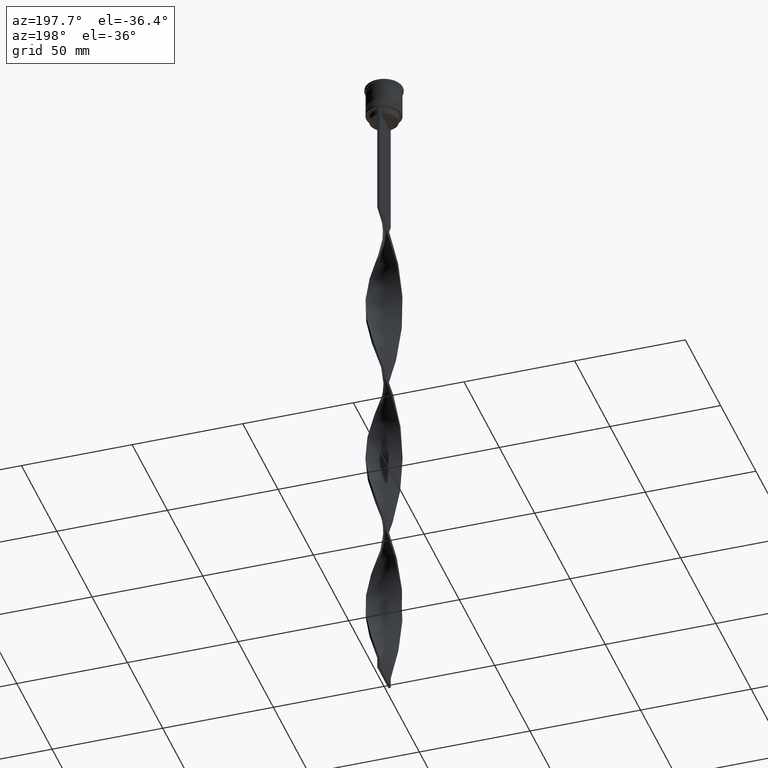
[diagram: clean part render]
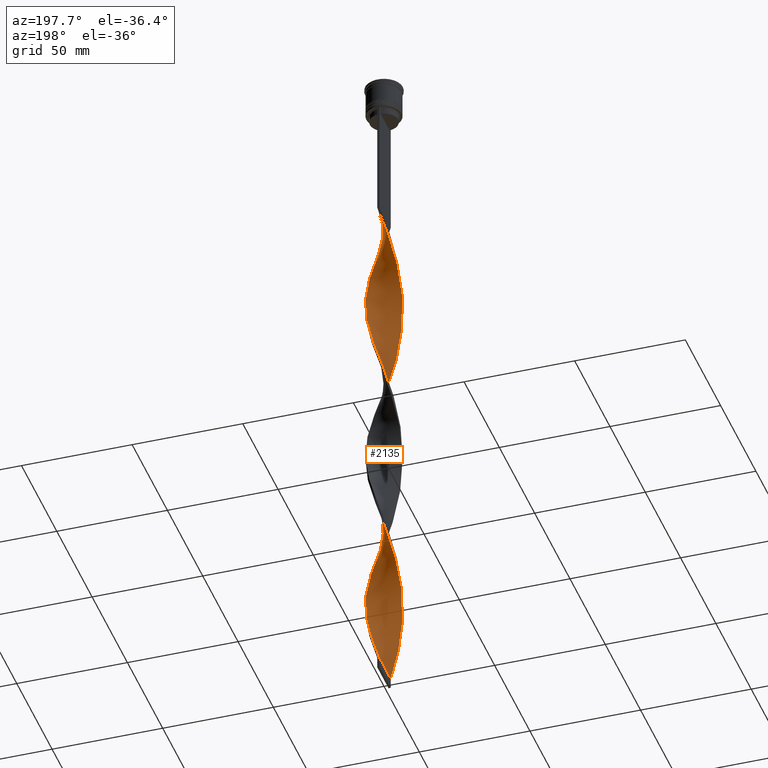
[diagram: same view with one face highlighted and labeled with its STEP entity id]
A machine part, auxiliary view. The second image highlights one B-rep face of the part: STEP entity #2135.
In plain terms, the highlighted face is a freeform B-spline surface patch.
Its self-contained STEP definition (entity closure, byte-faithful):
#39 = CARTESIAN_POINT ( 'NONE',  ( -6.010407640085651870, -5.303300858899103076, -128.2500000000000000 ) ) ;
#70 = CARTESIAN_POINT ( 'NONE',  ( -3.534302299652428481, -7.221957428453224637, -298.9583333333334281 ) ) ;
#85 = CARTESIAN_POINT ( 'NONE',  ( -2.361026126641883938, 7.685929837894287076, -154.3583333333333201 ) ) ;
#92 = CARTESIAN_POINT ( 'NONE',  ( -7.605824193947274381, -2.607565948252395405, -278.8750000000000000 ) ) ;
#108 = CARTESIAN_POINT ( 'NONE',  ( -8.000000000000003553, -0.4999999999999986122, -188.5000000000000000 ) ) ;
#113 = CARTESIAN_POINT ( 'NONE',  ( -7.355047443376719229, 3.186420735822193429, -176.4499999999999886 ) ) ;
#120 = CARTESIAN_POINT ( 'NONE',  ( 0.5000000000000001110, -8.000000000000003553, -68.00000000000000000 ) ) ;
#126 = CARTESIAN_POINT ( 'NONE',  ( 4.830271518912642392, 6.427786469485482712, -130.2583333333333542 ) ) ;
#129 = CARTESIAN_POINT ( 'NONE',  ( -5.303300858899103964, 6.010407640085652758, -88.08333333333334281 ) ) ;
#131 = CARTESIAN_POINT ( 'NONE',  ( -6.178243328853346483, -5.106790515527260155, -204.5666666666666629 ) ) ;
#143 = CARTESIAN_POINT ( 'NONE',  ( -5.593028810685832575, 5.776330198885578859, -166.4083333333333599 ) ) ;
#148 = CARTESIAN_POINT ( 'NONE',  ( -8.039350853412315701, 0.1296136545969528431, -186.4916666666667027 ) ) ;
#160 = EDGE_CURVE ( 'NONE', #2050, #3834, #1767, .T. ) ;
#168 = CARTESIAN_POINT ( 'NONE',  ( 2.607565948252399401, 7.605824193947282374, -138.2916666666667140 ) ) ;
#172 = CARTESIAN_POINT ( 'NONE',  ( 8.000000000000003553, 0.4999999999999995559, -108.1666666666666714 ) ) ;
#177 = CARTESIAN_POINT ( 'NONE',  ( -7.920097061150121576, -1.385649445451607509, -114.1916666666666771 ) ) ;
#181 = CARTESIAN_POINT ( 'NONE',  ( 7.920097061150122464, 1.385649445451603068, -194.5250000000000341 ) ) ;
#190 = CARTESIAN_POINT ( 'NONE',  ( -2.947664213147155987, 7.453943633173759409, -156.3666666666666458 ) ) ;
#197 = CARTESIAN_POINT ( 'NONE',  ( -7.762960627548699755, -1.996607696852000569, -116.2000000000000028 ) ) ;
#203 = CARTESIAN_POINT ( 'NONE',  ( 1.385649445451610617, 7.920097061150129569, -302.9750000000000227 ) ) ;
#218 = CARTESIAN_POINT ( 'NONE',  ( 0.7576315500242762901, -7.979723957281215085, -152.3499999999999943 ) ) ;
#223 = CARTESIAN_POINT ( 'NONE',  ( -5.776330198885572642, 5.593028810685829022, -250.7583333333332973 ) ) ;
#228 = CARTESIAN_POINT ( 'NONE',  ( 4.620552220368689511, -6.580156458821115883, -242.7250000000000227 ) ) ;
#236 = CARTESIAN_POINT ( 'NONE',  ( 0.1296136545969461817, -8.039350853412308595, -150.3416666666666401 ) ) ;
#240 = CARTESIAN_POINT ( 'NONE',  ( 1.745319890619417169, 7.823289492240981247, -224.6500000000000057 ) ) ;
#242 = CARTESIAN_POINT ( 'NONE',  ( 5.593028810685833463, -5.776330198885577971, -246.7416666666667027 ) ) ;
#245 = CARTESIAN_POINT ( 'NONE',  ( 6.427786469485483600, -4.830271518912642392, -250.7583333333333258 ) ) ;
#252 = CARTESIAN_POINT ( 'NONE',  ( -7.104270692806153420, -3.765275523391982571, -122.2250000000000085 ) ) ;
#261 = CARTESIAN_POINT ( 'NONE',  ( 6.178243328853345595, 5.106790515527260155, -284.9000000000000341 ) ) ;
#263 = CARTESIAN_POINT ( 'NONE',  ( -0.1296136545969472920, 8.039350853412308595, -70.00833333333335418 ) ) ;
#274 = CARTESIAN_POINT ( 'NONE',  ( 6.010407640085652758, 5.303300858899102188, -208.5833333333333428 ) ) ;
#288 = CARTESIAN_POINT ( 'NONE',  ( -3.186420735822193873, -7.355047443376719229, -216.6166666666666742 ) ) ;
#295 = CARTESIAN_POINT ( 'NONE',  ( 4.077427260010559884, -6.901056943637173369, -80.05000000000001137 ) ) ;
#298 = CARTESIAN_POINT ( 'NONE',  ( -7.355047443376713900, -3.186420735822188544, -120.2166666666666686 ) ) ;
#303 = CARTESIAN_POINT ( 'NONE',  ( -7.762960627548699755, -1.996607696852000569, -276.8666666666667311 ) ) ;
#306 = CARTESIAN_POINT ( 'NONE',  ( 5.593028810685833463, -5.776330198885577971, -86.07500000000003126 ) ) ;
#329 = CARTESIAN_POINT ( 'NONE',  ( 0.5000000000000001110, 7.999999999999996447, -68.00000000000000000 ) ) ;
#333 = CARTESIAN_POINT ( 'NONE',  ( -6.766028581145814513, -4.297773521152308263, -124.2333333333333343 ) ) ;
#372 = CARTESIAN_POINT ( 'NONE',  ( -6.766028581145814513, -4.297773521152308263, -284.9000000000000341 ) ) ;
#386 = CARTESIAN_POINT ( 'NONE',  ( 5.303300858899110182, 6.010407640085656311, -128.2500000000000000 ) ) ;
#391 = CARTESIAN_POINT ( 'NONE',  ( -7.221957428453224637, 3.534302299652428037, -258.7916666666666288 ) ) ;
#407 = CARTESIAN_POINT ( 'NONE',  ( 3.186420735822192984, 7.355047443376719229, -136.2833333333333314 ) ) ;
#414 = CARTESIAN_POINT ( 'NONE',  ( 5.776330198885578859, 5.593028810685832575, -126.2416666666666600 ) ) ;
#430 = CARTESIAN_POINT ( 'NONE',  ( -6.766028581145818066, 4.297773521152314480, -172.4333333333333371 ) ) ;
#436 = CARTESIAN_POINT ( 'NONE',  ( 6.178243328853345595, 5.106790515527260155, -124.2333333333333343 ) ) ;
#445 = CARTESIAN_POINT ( 'NONE',  ( 7.999999999999996447, -0.5000000000000016653, -188.5000000000000000 ) ) ;
#448 = CARTESIAN_POINT ( 'NONE',  ( -0.4999999999999991673, 8.000000000000003553, -148.3333333333333428 ) ) ;
#451 = CARTESIAN_POINT ( 'NONE',  ( 7.979723957281222191, -0.7576315500242788437, -104.1500000000000057 ) ) ;
#460 = CARTESIAN_POINT ( 'NONE',  ( 7.605824193947274381, 2.607565948252397625, -198.5416666666666856 ) ) ;
#463 = CARTESIAN_POINT ( 'NONE',  ( -0.1296136545969532317, -8.039350853412315701, -226.6583333333333883 ) ) ;
#469 = CARTESIAN_POINT ( 'NONE',  ( -6.580156458821117660, -4.620552220368685958, -202.5583333333333371 ) ) ;
#480 = CARTESIAN_POINT ( 'NONE',  ( -0.5000000000000011102, -7.999999999999996447, -148.3333333333333428 ) ) ;
#485 = CARTESIAN_POINT ( 'NONE',  ( 2.607565948252394517, -7.605824193947277045, -158.3750000000000284 ) ) ;
#488 = CARTESIAN_POINT ( 'NONE',  ( 7.453943633173759409, 2.947664213147156431, -276.8666666666667311 ) ) ;
#492 = CARTESIAN_POINT ( 'NONE',  ( 1.996607696852004121, 7.762960627548705084, -140.3000000000000114 ) ) ;
#499 = CARTESIAN_POINT ( 'NONE',  ( -0.5000000000000004441, -2.666666666666663410, -309.0000000000000000 ) ) ;
#500 = CARTESIAN_POINT ( 'NONE',  ( 7.605824193947273493, 2.607565948252397625, -198.5416666666667140 ) ) ;
#507 = CARTESIAN_POINT ( 'NONE',  ( 4.830271518912642392, 6.427786469485482712, -290.9250000000000682 ) ) ;
#519 = CARTESIAN_POINT ( 'NONE',  ( -6.427786469485477383, -4.830271518912637063, -126.2416666666666600 ) ) ;
#522 = CARTESIAN_POINT ( 'NONE',  ( 0.5000000000000001110, 7.999999999999996447, -228.6666666666666856 ) ) ;
#524 = CARTESIAN_POINT ( 'NONE',  ( 7.355047443376719229, -3.186420735822192540, -256.7833333333333599 ) ) ;
#528 = CARTESIAN_POINT ( 'NONE',  ( 5.593028810685833463, -5.776330198885577971, -246.7416666666666742 ) ) ;
#540 = CARTESIAN_POINT ( 'NONE',  ( -7.979723957281215085, -0.7576315500242769563, -112.1833333333333229 ) ) ;
#562 = CARTESIAN_POINT ( 'NONE',  ( 4.297773521152308263, -6.766028581145814513, -164.3999999999999773 ) ) ;
#566 = CARTESIAN_POINT ( 'NONE',  ( 5.106790515527259267, 6.178243328853339378, -212.6000000000000227 ) ) ;
#569 = CARTESIAN_POINT ( 'NONE',  ( 5.106790515527261043, -6.178243328853345595, -244.7333333333333201 ) ) ;
#573 = CARTESIAN_POINT ( 'NONE',  ( -0.1296136545969532317, -8.039350853412315701, -226.6583333333333883 ) ) ;
#577 = EDGE_CURVE ( 'NONE', #3834, #2097, #3514, .T. ) ;
#582 = CARTESIAN_POINT ( 'NONE',  ( 3.534302299652430257, -7.221957428453231742, -78.04166666666667140 ) ) ;
#585 = CARTESIAN_POINT ( 'NONE',  ( -2.607565948252395849, 7.605824193947275269, -238.7083333333333144 ) ) ;
#589 = CARTESIAN_POINT ( 'NONE',  ( -7.685929837894279082, 2.361026126641883938, -262.8083333333333371 ) ) ;
#592 = CARTESIAN_POINT ( 'NONE',  ( 7.762960627548705084, -1.996607696852003677, -260.8000000000000114 ) ) ;
#602 = CARTESIAN_POINT ( 'NONE',  ( -1.385649445451607953, 7.920097061150121576, -234.6916666666666629 ) ) ;
#632 = CARTESIAN_POINT ( 'NONE',  ( 4.077427260010559884, -6.901056943637173369, -80.05000000000001137 ) ) ;
#646 = CARTESIAN_POINT ( 'NONE',  ( 6.010407640085658088, -5.303300858899109294, -88.08333333333334281 ) ) ;
#677 = CARTESIAN_POINT ( 'NONE',  ( -7.685929837894279082, 2.361026126641883938, -262.8083333333332803 ) ) ;
#683 = CARTESIAN_POINT ( 'NONE',  ( -1.129613654596948624, -7.960649146587686964, -306.9916666666667879 ) ) ;
#687 = CARTESIAN_POINT ( 'NONE',  ( -0.4999999999999991673, 8.000000000000003553, -309.0000000000000000 ) ) ;
#696 = CARTESIAN_POINT ( 'NONE',  ( -6.178243328853340266, 5.106790515527257490, -252.7666666666667084 ) ) ;
#712 = CARTESIAN_POINT ( 'NONE',  ( 7.221957428453231742, 3.534302299652429813, -118.2083333333333286 ) ) ;
#714 = LINE ( 'NONE', #1821, #2943 ) ;
#716 = CARTESIAN_POINT ( 'NONE',  ( -7.453943633173751415, 2.947664213147155543, -260.8000000000000114 ) ) ;
#730 = CARTESIAN_POINT ( 'NONE',  ( -7.960649146587693181, -1.129613654596950401, -190.5083333333333542 ) ) ;
#737 = ORIENTED_EDGE ( 'NONE', *, *, #160, .F. ) ;
#738 = CARTESIAN_POINT ( 'NONE',  ( -7.221957428453230854, -3.534302299652432033, -198.5416666666667140 ) ) ;
#750 = CARTESIAN_POINT ( 'NONE',  ( 3.186420735822187655, -7.355047443376713900, -160.3833333333333258 ) ) ;
#753 = CARTESIAN_POINT ( 'NONE',  ( -6.010407640085656311, 5.303300858899110182, -168.4166666666666572 ) ) ;
#757 = CARTESIAN_POINT ( 'NONE',  ( 7.823289492240990128, 1.745319890619416059, -112.1833333333333229 ) ) ;
#762 = CARTESIAN_POINT ( 'NONE',  ( -0.1296136545969472642, 8.039350853412310371, -70.00833333333335418 ) ) ;
#764 = CARTESIAN_POINT ( 'NONE',  ( 7.960649146587686964, -1.129613654596952621, -186.4916666666667027 ) ) ;
#768 = CARTESIAN_POINT ( 'NONE',  ( -6.178243328853346483, -5.106790515527260155, -204.5666666666666629 ) ) ;
#773 = CARTESIAN_POINT ( 'NONE',  ( -3.534302299652429813, 7.221957428453232630, -158.3750000000000284 ) ) ;
#780 = CARTESIAN_POINT ( 'NONE',  ( -2.361026126641883938, -7.685929837894279082, -142.3083333333333371 ) ) ;
#782 = CARTESIAN_POINT ( 'NONE',  ( 7.453943633173751415, -2.947664213147155987, -180.4666666666666686 ) ) ;
#786 = CARTESIAN_POINT ( 'NONE',  ( 4.297773521152308263, -6.766028581145814513, -164.3999999999999773 ) ) ;
#790 = CARTESIAN_POINT ( 'NONE',  ( -2.947664213147155987, 7.453943633173759409, -156.3666666666666458 ) ) ;
#797 = CARTESIAN_POINT ( 'NONE',  ( 3.765275523391987011, 7.104270692806157861, -134.2750000000000341 ) ) ;
#810 = CARTESIAN_POINT ( 'NONE',  ( 7.920097061150121576, 1.385649445451603068, -194.5250000000000341 ) ) ;
#813 = CARTESIAN_POINT ( 'NONE',  ( 1.385649445451606843, -7.920097061150122464, -154.3583333333333201 ) ) ;
#821 = CARTESIAN_POINT ( 'NONE',  ( -7.920097061150128681, 1.385649445451607509, -182.4749999999999943 ) ) ;
#829 = CARTESIAN_POINT ( 'NONE',  ( -7.685929837894279082, 2.361026126641883938, -102.1416666666666941 ) ) ;
#835 = CARTESIAN_POINT ( 'NONE',  ( 6.010407640085658088, -5.303300858899109294, -248.7500000000000000 ) ) ;
#839 = CARTESIAN_POINT ( 'NONE',  ( 0.7576315500242793988, 7.979723957281220414, -304.9833333333333485 ) ) ;
#846 = CARTESIAN_POINT ( 'NONE',  ( -6.580156458821108778, 4.620552220368686847, -94.10833333333334849 ) ) ;
#855 = CARTESIAN_POINT ( 'NONE',  ( -1.129613654596948624, -7.960649146587686964, -146.3250000000000171 ) ) ;
#859 = CARTESIAN_POINT ( 'NONE',  ( -2.607565948252395849, 7.605824193947275269, -78.04166666666667140 ) ) ;
#868 = CARTESIAN_POINT ( 'NONE',  ( -2.947664213147155543, -7.453943633173751415, -140.3000000000000114 ) ) ;
#875 = CARTESIAN_POINT ( 'NONE',  ( 7.221957428453231742, 3.534302299652429813, -278.8750000000000000 ) ) ;
#880 = CARTESIAN_POINT ( 'NONE',  ( 6.901056943637173369, 4.077427260010559884, -280.8833333333333826 ) ) ;
#887 = CARTESIAN_POINT ( 'NONE',  ( 2.361026126641884826, -7.685929837894286187, -74.02500000000000568 ) ) ;
#889 = CARTESIAN_POINT ( 'NONE',  ( -6.010407640085651870, -5.303300858899103076, -288.9166666666666856 ) ) ;
#891 = CARTESIAN_POINT ( 'NONE',  ( -1.385649445451607731, 7.920097061150122464, -234.6916666666666629 ) ) ;
#899 = CARTESIAN_POINT ( 'NONE',  ( 0.5000000000000001110, -8.000000000000003553, -228.6666666666666856 ) ) ;
#908 = CARTESIAN_POINT ( 'NONE',  ( -0.5000000000000011102, -7.999999999999996447, -309.0000000000000000 ) ) ;
#915 = CARTESIAN_POINT ( 'NONE',  ( 2.947664213147156875, -7.453943633173757632, -76.03333333333334565 ) ) ;
#917 = CARTESIAN_POINT ( 'NONE',  ( 1.996607696852004121, 7.762960627548705084, -300.9666666666666401 ) ) ;
#931 = CARTESIAN_POINT ( 'NONE',  ( -7.979723957281215085, -0.7576315500242769563, -112.1833333333333229 ) ) ;
#940 = CARTESIAN_POINT ( 'NONE',  ( 4.620552220368689511, -6.580156458821115883, -82.05833333333335133 ) ) ;
#949 = CARTESIAN_POINT ( 'NONE',  ( -2.361026126641883938, -7.685929837894279082, -302.9750000000000227 ) ) ;
#981 = CARTESIAN_POINT ( 'NONE',  ( -6.580156458821108778, 4.620552220368686847, -254.7749999999999488 ) ) ;
#987 = CARTESIAN_POINT ( 'NONE',  ( -2.947664213147155543, -7.453943633173751415, -300.9666666666666401 ) ) ;
#1010 = CARTESIAN_POINT ( 'NONE',  ( -6.427786469485477383, -4.830271518912637063, -286.9083333333334167 ) ) ;
#1022 = CARTESIAN_POINT ( 'NONE',  ( 2.947664213147156875, -7.453943633173757632, -236.6999999999999886 ) ) ;
#1028 = CARTESIAN_POINT ( 'NONE',  ( 1.129613654596953065, 7.960649146587686964, -226.6583333333333883 ) ) ;
#1041 = CARTESIAN_POINT ( 'NONE',  ( 1.129613654596948180, -7.960649146587693181, -230.6750000000000114 ) ) ;
#1045 = CARTESIAN_POINT ( 'NONE',  ( 7.453943633173759409, 2.947664213147156431, -116.2000000000000028 ) ) ;
#1058 = CARTESIAN_POINT ( 'NONE',  ( 6.901056943637166263, -4.077427260010558108, -176.4499999999999886 ) ) ;
#1060 = CARTESIAN_POINT ( 'NONE',  ( -4.830271518912645945, -6.427786469485479159, -210.5916666666666686 ) ) ;
#1068 = CARTESIAN_POINT ( 'NONE',  ( -7.104270692806159637, 3.765275523391984347, -174.4416666666666629 ) ) ;
#1080 = CARTESIAN_POINT ( 'NONE',  ( 6.178243328853339378, -5.106790515527258378, -172.4333333333333371 ) ) ;
#1082 = CARTESIAN_POINT ( 'NONE',  ( -7.104270692806158749, 3.765275523391983903, -174.4416666666666629 ) ) ;
#1088 = CARTESIAN_POINT ( 'NONE',  ( 7.762960627548705084, -1.996607696852003677, -100.1333333333333400 ) ) ;
#1093 = CARTESIAN_POINT ( 'NONE',  ( -0.7576315500242774004, 7.979723957281215085, -72.01666666666667993 ) ) ;
#1098 = CARTESIAN_POINT ( 'NONE',  ( 3.765275523391986567, 7.104270692806156973, -134.2750000000000341 ) ) ;
#1104 = CARTESIAN_POINT ( 'NONE',  ( 2.607565948252399401, 7.605824193947281486, -138.2916666666667140 ) ) ;
#1111 = CARTESIAN_POINT ( 'NONE',  ( 7.685929837894279970, -2.361026126641881273, -182.4749999999999943 ) ) ;
#1118 = CARTESIAN_POINT ( 'NONE',  ( 6.178243328853345595, 5.106790515527260155, -284.9000000000000341 ) ) ;
#1124 = CARTESIAN_POINT ( 'NONE',  ( 1.385649445451610617, 7.920097061150128681, -142.3083333333333371 ) ) ;
#1137 = CARTESIAN_POINT ( 'NONE',  ( -8.039350853412310371, -0.1296136545969467091, -110.1749999999999972 ) ) ;
#1142 = CARTESIAN_POINT ( 'NONE',  ( 6.427786469485482712, -4.830271518912641504, -250.7583333333332973 ) ) ;
#1148 = CARTESIAN_POINT ( 'NONE',  ( 2.361026126641884826, -7.685929837894286187, -234.6916666666666629 ) ) ;
#1158 = CARTESIAN_POINT ( 'NONE',  ( -7.605824193947274381, -2.607565948252395405, -118.2083333333333144 ) ) ;
#1166 = CARTESIAN_POINT ( 'NONE',  ( 1.385649445451610617, 7.920097061150128681, -302.9750000000000227 ) ) ;
#1173 = CARTESIAN_POINT ( 'NONE',  ( 1.385649445451607065, -7.920097061150121576, -154.3583333333332916 ) ) ;
#1179 = CARTESIAN_POINT ( 'NONE',  ( 4.077427260010559884, -6.901056943637173369, -240.7166666666666686 ) ) ;
#1183 = CARTESIAN_POINT ( 'NONE',  ( 2.947664213147156875, -7.453943633173757632, -236.6999999999999886 ) ) ;
#1197 = CARTESIAN_POINT ( 'NONE',  ( -1.745319890619416281, -7.823289492240981247, -304.9833333333333485 ) ) ;
#1203 = CARTESIAN_POINT ( 'NONE',  ( 2.361026126641881717, 7.685929837894279970, -222.6416666666667084 ) ) ;
#1206 = CARTESIAN_POINT ( 'NONE',  ( 7.823289492240990128, 1.745319890619416059, -272.8500000000000227 ) ) ;
#1221 = CARTESIAN_POINT ( 'NONE',  ( 2.361026126641881717, 7.685929837894279970, -222.6416666666667084 ) ) ;
#1227 = CARTESIAN_POINT ( 'NONE',  ( -7.960649146587686964, 1.129613654596948180, -266.8249999999999886 ) ) ;
#1231 = CARTESIAN_POINT ( 'NONE',  ( 8.000000000000003553, 0.4999999999999995559, -268.8333333333333712 ) ) ;
#1238 = CARTESIAN_POINT ( 'NONE',  ( -7.762960627548699755, -1.996607696852000569, -276.8666666666667311 ) ) ;
#1245 = CARTESIAN_POINT ( 'NONE',  ( 7.355047443376719229, -3.186420735822192540, -96.11666666666667425 ) ) ;
#1263 = CARTESIAN_POINT ( 'NONE',  ( -8.039350853412308595, -0.1296136545969467369, -110.1750000000000114 ) ) ;
#1285 = CARTESIAN_POINT ( 'NONE',  ( -7.104270692806152532, -3.765275523391982126, -122.2250000000000085 ) ) ;
#1314 = CARTESIAN_POINT ( 'NONE',  ( -3.765275523391982571, 7.104270692806153420, -242.7250000000000227 ) ) ;
#1329 = CARTESIAN_POINT ( 'NONE',  ( -5.303300858899111070, -6.010407640085655423, -208.5833333333333428 ) ) ;
#1339 = CARTESIAN_POINT ( 'NONE',  ( -7.355047443376713900, -3.186420735822188544, -280.8833333333333826 ) ) ;
#1350 = EDGE_LOOP ( 'NONE', ( #1598, #3524, #1964, #737 ) ) ;
#1351 = CARTESIAN_POINT ( 'NONE',  ( 7.823289492240990128, 1.745319890619416059, -112.1833333333333229 ) ) ;
#1357 = CARTESIAN_POINT ( 'NONE',  ( 4.830271518912643280, 6.427786469485483600, -130.2583333333333826 ) ) ;
#1368 = CARTESIAN_POINT ( 'NONE',  ( -7.453943633173751415, 2.947664213147155543, -100.1333333333333400 ) ) ;
#1370 = CARTESIAN_POINT ( 'NONE',  ( -0.5000000000000011102, -7.999999999999996447, -309.0000000000000000 ) ) ;
#1372 = CARTESIAN_POINT ( 'NONE',  ( 6.178243328853345595, 5.106790515527260155, -124.2333333333333343 ) ) ;
#1377 = CARTESIAN_POINT ( 'NONE',  ( -5.776330198885577083, -5.593028810685835239, -206.5750000000000171 ) ) ;
#1392 = CARTESIAN_POINT ( 'NONE',  ( -8.039350853412315701, 0.1296136545969528431, -186.4916666666667027 ) ) ;
#1398 = CARTESIAN_POINT ( 'NONE',  ( 7.355047443376719229, -3.186420735822192540, -96.11666666666667425 ) ) ;
#1413 = CARTESIAN_POINT ( 'NONE',  ( 6.580156458821115883, 4.620552220368689511, -122.2250000000000085 ) ) ;
#1417 = CARTESIAN_POINT ( 'NONE',  ( 6.010407640085658088, -5.303300858899109294, -88.08333333333334281 ) ) ;
#1423 = CARTESIAN_POINT ( 'NONE',  ( 7.960649146587686964, -1.129613654596952621, -186.4916666666667027 ) ) ;
#1429 = CARTESIAN_POINT ( 'NONE',  ( 0.7576315500242793988, 7.979723957281220414, -304.9833333333333485 ) ) ;
#1435 = CARTESIAN_POINT ( 'NONE',  ( -6.010407640085656311, 5.303300858899110182, -168.4166666666666572 ) ) ;
#1442 = CARTESIAN_POINT ( 'NONE',  ( -2.607565948252395849, 7.605824193947274381, -78.04166666666667140 ) ) ;
#1468 = CARTESIAN_POINT ( 'NONE',  ( 3.765275523391981682, -7.104270692806153420, -162.3916666666666799 ) ) ;
#1471 = CARTESIAN_POINT ( 'NONE',  ( 6.427786469485477383, 4.830271518912639728, -206.5750000000000171 ) ) ;
#1477 = CARTESIAN_POINT ( 'NONE',  ( 4.297773521152314480, 6.766028581145818066, -292.9333333333333371 ) ) ;
#1486 = CARTESIAN_POINT ( 'NONE',  ( 1.996607696852000124, -7.762960627548699755, -156.3666666666666458 ) ) ;
#1489 = CARTESIAN_POINT ( 'NONE',  ( -3.186420735822188544, 7.355047443376713900, -240.7166666666666686 ) ) ;
#1492 = CARTESIAN_POINT ( 'NONE',  ( 7.920097061150129569, -1.385649445451610173, -262.8083333333333371 ) ) ;
#1496 = CARTESIAN_POINT ( 'NONE',  ( 7.979723957281222191, -0.7576315500242788437, -264.8166666666667197 ) ) ;
#1507 = CARTESIAN_POINT ( 'NONE',  ( -7.104270692806153420, -3.765275523391982571, -282.8916666666667084 ) ) ;
#1516 = CARTESIAN_POINT ( 'NONE',  ( 7.960649146587693181, 1.129613654596947958, -270.8416666666666401 ) ) ;
#1530 = CARTESIAN_POINT ( 'NONE',  ( 3.534302299652432033, 7.221957428453222860, -218.6250000000000568 ) ) ;
#1541 = CARTESIAN_POINT ( 'NONE',  ( -1.385649445451607953, -7.920097061150128681, -222.6416666666667084 ) ) ;
#1543 = CARTESIAN_POINT ( 'NONE',  ( -1.385649445451607731, 7.920097061150122464, -74.02500000000000568 ) ) ;
#1550 = CARTESIAN_POINT ( 'NONE',  ( 4.620552220368689511, -6.580156458821115883, -82.05833333333336554 ) ) ;
#1553 = CARTESIAN_POINT ( 'NONE',  ( -6.427786469485477383, -4.830271518912636175, -126.2416666666666742 ) ) ;
#1559 = CARTESIAN_POINT ( 'NONE',  ( -7.605824193947275269, -2.607565948252395405, -278.8750000000000000 ) ) ;
#1561 = CARTESIAN_POINT ( 'NONE',  ( 6.427786469485482712, -4.830271518912641504, -90.09166666666666856 ) ) ;
#1574 = CARTESIAN_POINT ( 'NONE',  ( -7.920097061150122464, -1.385649445451607287, -114.1916666666666771 ) ) ;
#1578 = CARTESIAN_POINT ( 'NONE',  ( -6.901056943637166263, 4.077427260010557220, -256.7833333333333599 ) ) ;
#1580 = CARTESIAN_POINT ( 'NONE',  ( 7.920097061150129569, -1.385649445451610173, -102.1416666666666799 ) ) ;
#1596 = CARTESIAN_POINT ( 'NONE',  ( -5.106790515527258378, -6.178243328853339378, -132.2666666666666799 ) ) ;
#1598 = ORIENTED_EDGE ( 'NONE', *, *, #3803, .F. ) ;
#1613 = EDGE_CURVE ( 'NONE', #4057, #2097, #2511, .T. ) ;
#1618 = CARTESIAN_POINT ( 'NONE',  ( -4.077427260010557220, -6.901056943637166263, -296.9499999999999886 ) ) ;
#1632 = CARTESIAN_POINT ( 'NONE',  ( -4.620552220368686847, -6.580156458821108778, -294.9416666666667197 ) ) ;
#1646 = CARTESIAN_POINT ( 'NONE',  ( -7.453943633173759409, -2.947664213147155543, -196.5333333333333314 ) ) ;
#1651 = CARTESIAN_POINT ( 'NONE',  ( -5.303300858899103964, 6.010407640085652758, -248.7500000000000000 ) ) ;
#1668 = CARTESIAN_POINT ( 'NONE',  ( -7.762960627548705084, 1.996607696852004565, -180.4666666666666686 ) ) ;
#1676 = CARTESIAN_POINT ( 'NONE',  ( -8.000000000000003553, -0.4999999999999986122, -188.5000000000000000 ) ) ;
#1689 = CARTESIAN_POINT ( 'NONE',  ( -7.685929837894287964, -2.361026126641879941, -194.5250000000000341 ) ) ;
#1694 = CARTESIAN_POINT ( 'NONE',  ( -7.685929837894287964, -2.361026126641879941, -194.5250000000000341 ) ) ;
#1704 = CARTESIAN_POINT ( 'NONE',  ( 7.355047443376714789, 3.186420735822187655, -200.5500000000000114 ) ) ;
#1707 = CARTESIAN_POINT ( 'NONE',  ( -3.534302299652429813, 7.221957428453232630, -158.3750000000000284 ) ) ;
#1710 = CARTESIAN_POINT ( 'NONE',  ( 5.303300858899110182, 6.010407640085656311, -128.2500000000000000 ) ) ;
#1723 = CARTESIAN_POINT ( 'NONE',  ( 7.453943633173751415, -2.947664213147155987, -180.4666666666666686 ) ) ;
#1726 = CARTESIAN_POINT ( 'NONE',  ( 0.5000000000000001110, -8.000000000000003553, -228.6666666666666856 ) ) ;
#1733 = CARTESIAN_POINT ( 'NONE',  ( 6.901056943637173369, 4.077427260010559884, -120.2166666666666686 ) ) ;
#1740 = CARTESIAN_POINT ( 'NONE',  ( -3.186420735822188544, 7.355047443376713900, -80.05000000000001137 ) ) ;
#1743 = CARTESIAN_POINT ( 'NONE',  ( 6.580156458821111443, -4.620552220368684182, -174.4416666666666629 ) ) ;
#1745 = CARTESIAN_POINT ( 'NONE',  ( 7.762960627548705084, -1.996607696852003677, -260.8000000000000114 ) ) ;
#1750 = CARTESIAN_POINT ( 'NONE',  ( -4.620552220368688623, 6.580156458821115883, -162.3916666666666799 ) ) ;
#1758 = CARTESIAN_POINT ( 'NONE',  ( -5.303300858899103964, 6.010407640085652758, -88.08333333333334281 ) ) ;
#1767 =( BOUNDED_CURVE ( )  B_SPLINE_CURVE ( 2, ( #329, #263, #2810, #1543, #3076, #859, #3402, #3232, #2342, #3296, #129, #3573, #2048, #2011, #3959, #1986, #1368, #2684, #3870, #3541, #3144, #1263, #931, #1574, #3807, #3182, #298, #1285, #333, #1553, #39, #2838, #1596, #2885, #2551, #2222, #3306, #780, #2749, #855, #2948, #2537, #2289, #813, #2353, #485, #750, #3042, #786, #2685, #3272, #2616, #1080, #1743, #1058, #3626, #1723, #3915, #2968, #764, #445, #3309, #3973, #181, #2005, #460, #1704, #2986, #2774, #1471, #2435, #2417, #566, #2125, #2145, #2729, #2793, #1203, #240, #2457, #522, #3122, #4021, #891, #3432, #585, #1489, #4088, #2479, #3766, #2398, #223, #2758, #1881, #1578, #3129, #2556, #589, #4093, #1227, #3812, #2484, #1865, #3149, #303, #1559, #4110, #1802, #2791, #3746, #889, #2182, #3450, #4019, #1618, #1977, #987, #949, #2881, #683, #2593 ),
 .UNSPECIFIED., .F., .T. ) 
 B_SPLINE_CURVE_WITH_KNOTS ( ( 3, 2, 2, 2, 2, 2, 2, 2, 2, 2, 2, 2, 2, 2, 2, 2, 2, 2, 2, 2, 2, 2, 2, 2, 2, 2, 2, 2, 2, 2, 2, 2, 2, 2, 2, 2, 2, 2, 2, 2, 2, 2, 2, 2, 2, 2, 2, 2, 2, 2, 2, 2, 2, 2, 2, 2, 2, 2, 2, 2, 3 ),
 ( 0.000000000000000000, 0.01250000000000000243, 0.02500000000000000486, 0.03749999999999999861, 0.05000000000000000971, 0.06250000000000000000, 0.07499999999999999722, 0.08749999999999998057, 0.1000000000000000194, 0.1125000000000000028, 0.1250000000000000000, 0.1375000000000000111, 0.1499999999999999944, 0.1625000000000000056, 0.1749999999999999611, 0.1875000000000000000, 0.2000000000000000389, 0.2124999999999999944, 0.2250000000000000056, 0.2374999999999999611, 0.2500000000000000000, 0.2625000000000000111, 0.2750000000000000222, 0.2874999999999999778, 0.2999999999999999889, 0.3125000000000000000, 0.3250000000000000111, 0.3375000000000000777, 0.3499999999999999223, 0.3624999999999999889, 0.3750000000000000000, 0.3875000000000000111, 0.4000000000000000777, 0.4124999999999999223, 0.4249999999999999889, 0.4375000000000000000, 0.4500000000000000111, 0.4625000000000000777, 0.4749999999999999223, 0.4874999999999999889, 0.5000000000000000000, 0.5124999999999999556, 0.5250000000000000222, 0.5374999999999999778, 0.5500000000000000444, 0.5625000000000000000, 0.5749999999999999556, 0.5875000000000000222, 0.5999999999999999778, 0.6125000000000000444, 0.6250000000000000000, 0.6374999999999999556, 0.6500000000000000222, 0.6624999999999999778, 0.6750000000000001554, 0.6875000000000000000, 0.6999999999999998446, 0.7125000000000000222, 0.7249999999999999778, 0.7375000000000001554, 0.7500000000000000000 ),
 .UNSPECIFIED. ) 
 CURVE ( )  GEOMETRIC_REPRESENTATION_ITEM ( )  RATIONAL_B_SPLINE_CURVE ( ( 1.000000000000000000, 0.9969173337331279638, 1.000000000000000000, 0.9969173337331279638, 1.000000000000000000, 0.9969173337331279638, 1.000000000000000000, 0.9969173337331279638, 1.000000000000000000, 0.9969173337331279638, 1.000000000000000000, 0.9969173337331279638, 1.000000000000000000, 0.9969173337331279638, 1.000000000000000000, 0.9969173337331279638, 1.000000000000000000, 0.9969173337331279638, 1.000000000000000000, 0.9969173337331279638, 1.000000000000000000, 0.9969173337331279638, 1.000000000000000000, 0.9969173337331279638, 1.000000000000000000, 0.9969173337331279638, 1.000000000000000000, 0.9969173337331279638, 1.000000000000000000, 0.9969173337331279638, 1.000000000000000000, 0.9969173337331279638, 1.000000000000000000, 0.9969173337331279638, 1.000000000000000000, 0.9969173337331279638, 1.000000000000000000, 0.9969173337331279638, 1.000000000000000000, 0.9969173337331279638, 1.000000000000000000, 0.9969173337331279638, 1.000000000000000000, 0.9969173337331279638, 1.000000000000000000, 0.9969173337331279638, 1.000000000000000000, 0.9969173337331279638, 1.000000000000000000, 0.9969173337331279638, 1.000000000000000000, 0.9969173337331279638, 1.000000000000000000, 0.9969173337331279638, 1.000000000000000000, 0.9969173337331279638, 1.000000000000000000, 0.9969173337331279638, 1.000000000000000000, 0.9969173337331279638, 1.000000000000000000, 0.9969173337331279638, 1.000000000000000000, 0.9969173337331279638, 1.000000000000000000, 0.9969173337331279638, 1.000000000000000000, 0.9969173337331279638, 1.000000000000000000, 0.9969173337331279638, 1.000000000000000000, 0.9969173337331279638, 1.000000000000000000, 0.9969173337331279638, 1.000000000000000000, 0.9969173337331279638, 1.000000000000000000, 0.9969173337331279638, 1.000000000000000000, 0.9969173337331279638, 1.000000000000000000, 0.9969173337331279638, 1.000000000000000000, 0.9969173337331279638, 1.000000000000000000, 0.9969173337331279638, 1.000000000000000000, 0.9969173337331279638, 1.000000000000000000, 0.9969173337331279638, 1.000000000000000000, 0.9969173337331279638, 1.000000000000000000, 0.9969173337331279638, 1.000000000000000000, 0.9969173337331279638, 1.000000000000000000, 0.9969173337331279638, 1.000000000000000000, 0.9969173337331279638, 1.000000000000000000, 0.9969173337331279638, 1.000000000000000000, 0.9969173337331279638, 1.000000000000000000, 0.9969173337331279638, 1.000000000000000000, 0.9969173337331279638, 1.000000000000000000, 0.9969173337331279638, 1.000000000000000000, 0.9969173337331279638, 1.000000000000000000, 0.9969173337331279638, 1.000000000000000000, 0.9969173337331279638, 1.000000000000000000, 0.9969173337331279638, 1.000000000000000000, 0.9969173337331279638, 1.000000000000000000 ) ) 
 REPRESENTATION_ITEM ( '' )  );
#1777 = CARTESIAN_POINT ( 'NONE',  ( -3.765275523391982571, 7.104270692806153420, -82.05833333333336554 ) ) ;
#1790 = CARTESIAN_POINT ( 'NONE',  ( 5.303300858899110182, 6.010407640085656311, -288.9166666666666856 ) ) ;
#1800 = CARTESIAN_POINT ( 'NONE',  ( -2.361026126641883938, -7.685929837894279082, -142.3083333333333371 ) ) ;
#1802 = CARTESIAN_POINT ( 'NONE',  ( -7.104270692806152532, -3.765275523391982126, -282.8916666666667084 ) ) ;
#1806 = CARTESIAN_POINT ( 'NONE',  ( 6.901056943637173369, 4.077427260010559884, -280.8833333333333826 ) ) ;
#1809 = CARTESIAN_POINT ( 'NONE',  ( 5.776330198885578859, 5.593028810685832575, -286.9083333333334167 ) ) ;
#1818 = CARTESIAN_POINT ( 'NONE',  ( 5.776330198885569978, -5.593028810685831687, -170.4250000000000398 ) ) ;
#1821 = CARTESIAN_POINT ( 'NONE',  ( 0.5000000000000001110, -8.000000000000003553, -68.00000000000000000 ) ) ;
#1823 = CARTESIAN_POINT ( 'NONE',  ( 4.297773521152314480, 6.766028581145818066, -292.9333333333333371 ) ) ;
#1827 = CARTESIAN_POINT ( 'NONE',  ( 2.607565948252399401, 7.605824193947281486, -298.9583333333334281 ) ) ;
#1836 = CARTESIAN_POINT ( 'NONE',  ( 7.104270692806155196, 3.765275523391978574, -202.5583333333333371 ) ) ;
#1846 = CARTESIAN_POINT ( 'NONE',  ( 7.685929837894287076, 2.361026126641884382, -274.8583333333332916 ) ) ;
#1858 = CARTESIAN_POINT ( 'NONE',  ( 0.5000000000000001110, 7.999999999999996447, -228.6666666666666856 ) ) ;
#1865 = CARTESIAN_POINT ( 'NONE',  ( -7.979723957281215085, -0.7576315500242769563, -272.8500000000000227 ) ) ;
#1881 = CARTESIAN_POINT ( 'NONE',  ( -6.580156458821108778, 4.620552220368686847, -254.7749999999999773 ) ) ;
#1885 = CARTESIAN_POINT ( 'NONE',  ( 7.605824193947282374, -2.607565948252398957, -98.12500000000001421 ) ) ;
#1931 = CARTESIAN_POINT ( 'NONE',  ( -7.960649146587686964, 1.129613654596948402, -266.8249999999999886 ) ) ;
#1950 =( BOUNDED_SURFACE ( )  B_SPLINE_SURFACE ( 1, 2, ( 
 ( #3624, #762, #1093, #2098, #2413, #1442, #1740, #1777, #2723, #2680, #1758, #3038, #3701, #846, #2080, #2121, #3684, #829, #3365, #3383, #3996, #1137, #540, #177, #197, #1158, #3327, #252, #4017, #519, #2699, #3950, #2396, #3640, #3058, #3082, #868, #1800, #2770, #3409, #480, #236, #218, #1173, #1486, #4038, #2430, #1468, #562, #3719, #2350, #1818, #3100, #2754, #3019, #3349, #782, #1111, #2035, #1423, #3969, #2371, #3665, #810, #2058, #500, #3118, #1836, #3882, #3839, #274, #2788, #2496, #2278, #3575, #1530, #2607, #1221, #1952, #1028, #1858, #2913, #3236, #602, #2263, #3428, #3531, #1314, #1970, #2476, #1651, #2817, #696, #981, #2238, #391, #716, #677, #2935, #1931, #3216, #2160, #3257, #3862, #1238, #92, #1339, #1507, #372, #1010, #2584, #4104, #4084, #1632, #3763, #70, #3553, #4058, #1197, #3447, #908 ),
 ( #2454, #3140, #3744, #887, #2142, #582, #295, #1550, #2835, #2014, #1417, #2692, #3945, #3983, #1398, #2674, #1088, #3961, #451, #2992, #172, #1997, #757, #3014, #1045, #2070, #1733, #2344, #436, #414, #1710, #1357, #3634, #797, #2713, #1104, #492, #1124, #2298, #2362, #2028, #3030, #3651, #2052, #190, #773, #2386, #1750, #2959, #3339, #1435, #3299, #3595, #1068, #113, #2977, #3676, #821, #3314, #148, #1676, #2647, #3901, #1694, #3282, #738, #2625, #469, #131, #1377, #3923, #2326, #3618, #3693, #288, #3074, #3756, #1541, #3711, #573, #899, #2423, #4076, #1148, #1183, #3108, #3772, #228, #3440, #528, #2467, #245, #4048, #2152, #4098, #2444, #592, #3736, #1496, #4028, #1231, #1516, #3090, #1846, #3133, #2827, #880, #2806, #261, #1809, #1790, #2780, #1477, #2133, #3418, #1827, #917, #1166, #839, #2487, #3359 ) ),
 .UNSPECIFIED., .F., .F., .F. ) 
 B_SPLINE_SURFACE_WITH_KNOTS ( ( 2, 2 ),
 ( 3, 2, 2, 2, 2, 2, 2, 2, 2, 2, 2, 2, 2, 2, 2, 2, 2, 2, 2, 2, 2, 2, 2, 2, 2, 2, 2, 2, 2, 2, 2, 2, 2, 2, 2, 2, 2, 2, 2, 2, 2, 2, 2, 2, 2, 2, 2, 2, 2, 2, 2, 2, 2, 2, 2, 2, 2, 2, 2, 2, 3 ),
 ( 0.000000000000000000, 1.000000000000000000 ),
 ( 0.000000000000000000, 0.01250000000000000069, 0.02500000000000000139, 0.03749999999999999861, 0.05000000000000000278, 0.06250000000000000000, 0.07499999999999999722, 0.08749999999999999445, 0.1000000000000000056, 0.1125000000000000028, 0.1250000000000000000, 0.1375000000000000111, 0.1499999999999999944, 0.1625000000000000056, 0.1749999999999999889, 0.1875000000000000000, 0.2000000000000000111, 0.2124999999999999944, 0.2250000000000000056, 0.2374999999999999889, 0.2500000000000000000, 0.2625000000000000111, 0.2750000000000000222, 0.2874999999999999778, 0.2999999999999999889, 0.3125000000000000000, 0.3250000000000000111, 0.3375000000000000222, 0.3499999999999999778, 0.3624999999999999889, 0.3750000000000000000, 0.3875000000000000111, 0.4000000000000000222, 0.4124999999999999778, 0.4249999999999999889, 0.4375000000000000000, 0.4500000000000000111, 0.4625000000000000222, 0.4749999999999999778, 0.4874999999999999889, 0.5000000000000000000, 0.5124999999999999556, 0.5250000000000000222, 0.5374999999999999778, 0.5500000000000000444, 0.5625000000000000000, 0.5749999999999999556, 0.5875000000000000222, 0.5999999999999999778, 0.6125000000000000444, 0.6250000000000000000, 0.6374999999999999556, 0.6500000000000000222, 0.6624999999999999778, 0.6750000000000000444, 0.6875000000000000000, 0.6999999999999999556, 0.7125000000000000222, 0.7249999999999999778, 0.7375000000000000444, 0.7500000000000000000 ),
 .UNSPECIFIED. ) 
 GEOMETRIC_REPRESENTATION_ITEM ( )  RATIONAL_B_SPLINE_SURFACE ( (
 ( 1.000000000000000000, 0.9969173337331279638, 1.000000000000000000, 0.9969173337331279638, 1.000000000000000000, 0.9969173337331279638, 1.000000000000000000, 0.9969173337331279638, 1.000000000000000000, 0.9969173337331279638, 1.000000000000000000, 0.9969173337331279638, 1.000000000000000000, 0.9969173337331279638, 1.000000000000000000, 0.9969173337331279638, 1.000000000000000000, 0.9969173337331279638, 1.000000000000000000, 0.9969173337331279638, 1.000000000000000000, 0.9969173337331279638, 1.000000000000000000, 0.9969173337331279638, 1.000000000000000000, 0.9969173337331279638, 1.000000000000000000, 0.9969173337331279638, 1.000000000000000000, 0.9969173337331279638, 1.000000000000000000, 0.9969173337331279638, 1.000000000000000000, 0.9969173337331279638, 1.000000000000000000, 0.9969173337331279638, 1.000000000000000000, 0.9969173337331279638, 1.000000000000000000, 0.9969173337331279638, 1.000000000000000000, 0.9969173337331279638, 1.000000000000000000, 0.9969173337331279638, 1.000000000000000000, 0.9969173337331279638, 1.000000000000000000, 0.9969173337331279638, 1.000000000000000000, 0.9969173337331279638, 1.000000000000000000, 0.9969173337331279638, 1.000000000000000000, 0.9969173337331279638, 1.000000000000000000, 0.9969173337331279638, 1.000000000000000000, 0.9969173337331279638, 1.000000000000000000, 0.9969173337331279638, 1.000000000000000000, 0.9969173337331279638, 1.000000000000000000, 0.9969173337331279638, 1.000000000000000000, 0.9969173337331279638, 1.000000000000000000, 0.9969173337331279638, 1.000000000000000000, 0.9969173337331279638, 1.000000000000000000, 0.9969173337331279638, 1.000000000000000000, 0.9969173337331279638, 1.000000000000000000, 0.9969173337331279638, 1.000000000000000000, 0.9969173337331279638, 1.000000000000000000, 0.9969173337331279638, 1.000000000000000000, 0.9969173337331279638, 1.000000000000000000, 0.9969173337331279638, 1.000000000000000000, 0.9969173337331279638, 1.000000000000000000, 0.9969173337331279638, 1.000000000000000000, 0.9969173337331279638, 1.000000000000000000, 0.9969173337331279638, 1.000000000000000000, 0.9969173337331279638, 1.000000000000000000, 0.9969173337331279638, 1.000000000000000000, 0.9969173337331279638, 1.000000000000000000, 0.9969173337331279638, 1.000000000000000000, 0.9969173337331279638, 1.000000000000000000, 0.9969173337331279638, 1.000000000000000000, 0.9969173337331279638, 1.000000000000000000, 0.9969173337331279638, 1.000000000000000000, 0.9969173337331279638, 1.000000000000000000, 0.9969173337331279638, 1.000000000000000000, 0.9969173337331279638, 1.000000000000000000, 0.9969173337331279638, 1.000000000000000000, 0.9969173337331279638, 1.000000000000000000, 0.9969173337331279638, 1.000000000000000000),
 ( 1.000000000000000000, 0.9969173337331279638, 1.000000000000000000, 0.9969173337331279638, 1.000000000000000000, 0.9969173337331279638, 1.000000000000000000, 0.9969173337331279638, 1.000000000000000000, 0.9969173337331279638, 1.000000000000000000, 0.9969173337331279638, 1.000000000000000000, 0.9969173337331279638, 1.000000000000000000, 0.9969173337331279638, 1.000000000000000000, 0.9969173337331279638, 1.000000000000000000, 0.9969173337331279638, 1.000000000000000000, 0.9969173337331279638, 1.000000000000000000, 0.9969173337331279638, 1.000000000000000000, 0.9969173337331279638, 1.000000000000000000, 0.9969173337331279638, 1.000000000000000000, 0.9969173337331279638, 1.000000000000000000, 0.9969173337331279638, 1.000000000000000000, 0.9969173337331279638, 1.000000000000000000, 0.9969173337331279638, 1.000000000000000000, 0.9969173337331279638, 1.000000000000000000, 0.9969173337331279638, 1.000000000000000000, 0.9969173337331279638, 1.000000000000000000, 0.9969173337331279638, 1.000000000000000000, 0.9969173337331279638, 1.000000000000000000, 0.9969173337331279638, 1.000000000000000000, 0.9969173337331279638, 1.000000000000000000, 0.9969173337331279638, 1.000000000000000000, 0.9969173337331279638, 1.000000000000000000, 0.9969173337331279638, 1.000000000000000000, 0.9969173337331279638, 1.000000000000000000, 0.9969173337331279638, 1.000000000000000000, 0.9969173337331279638, 1.000000000000000000, 0.9969173337331279638, 1.000000000000000000, 0.9969173337331279638, 1.000000000000000000, 0.9969173337331279638, 1.000000000000000000, 0.9969173337331279638, 1.000000000000000000, 0.9969173337331279638, 1.000000000000000000, 0.9969173337331279638, 1.000000000000000000, 0.9969173337331279638, 1.000000000000000000, 0.9969173337331279638, 1.000000000000000000, 0.9969173337331279638, 1.000000000000000000, 0.9969173337331279638, 1.000000000000000000, 0.9969173337331279638, 1.000000000000000000, 0.9969173337331279638, 1.000000000000000000, 0.9969173337331279638, 1.000000000000000000, 0.9969173337331279638, 1.000000000000000000, 0.9969173337331279638, 1.000000000000000000, 0.9969173337331279638, 1.000000000000000000, 0.9969173337331279638, 1.000000000000000000, 0.9969173337331279638, 1.000000000000000000, 0.9969173337331279638, 1.000000000000000000, 0.9969173337331279638, 1.000000000000000000, 0.9969173337331279638, 1.000000000000000000, 0.9969173337331279638, 1.000000000000000000, 0.9969173337331279638, 1.000000000000000000, 0.9969173337331279638, 1.000000000000000000, 0.9969173337331279638, 1.000000000000000000, 0.9969173337331279638, 1.000000000000000000, 0.9969173337331279638, 1.000000000000000000, 0.9969173337331279638, 1.000000000000000000, 0.9969173337331279638, 1.000000000000000000) ) ) 
 REPRESENTATION_ITEM ( '' )  SURFACE ( )  );
#1952 = CARTESIAN_POINT ( 'NONE',  ( 1.745319890619417169, 7.823289492240981247, -224.6500000000000057 ) ) ;
#1964 = ORIENTED_EDGE ( 'NONE', *, *, #577, .F. ) ;
#1965 = CARTESIAN_POINT ( 'NONE',  ( 5.776330198885578859, 5.593028810685832575, -126.2416666666666742 ) ) ;
#1970 = CARTESIAN_POINT ( 'NONE',  ( -4.297773521152309151, 6.766028581145814513, -244.7333333333333201 ) ) ;
#1977 = CARTESIAN_POINT ( 'NONE',  ( -3.534302299652428481, -7.221957428453224637, -298.9583333333333712 ) ) ;
#1986 = CARTESIAN_POINT ( 'NONE',  ( -7.221957428453224637, 3.534302299652428037, -98.12500000000001421 ) ) ;
#1989 = CARTESIAN_POINT ( 'NONE',  ( -7.355047443376719229, 3.186420735822193429, -176.4499999999999886 ) ) ;
#1997 = CARTESIAN_POINT ( 'NONE',  ( 7.960649146587693181, 1.129613654596947958, -110.1749999999999972 ) ) ;
#2005 = CARTESIAN_POINT ( 'NONE',  ( 7.762960627548699755, 1.996607696851999680, -196.5333333333333314 ) ) ;
#2007 = CARTESIAN_POINT ( 'NONE',  ( -3.765275523391984791, -7.104270692806157861, -214.6083333333333769 ) ) ;
#2011 = CARTESIAN_POINT ( 'NONE',  ( -6.580156458821108778, 4.620552220368686847, -94.10833333333334849 ) ) ;
#2014 = CARTESIAN_POINT ( 'NONE',  ( 5.593028810685833463, -5.776330198885577971, -86.07500000000003126 ) ) ;
#2024 = CARTESIAN_POINT ( 'NONE',  ( -3.186420735822193873, -7.355047443376719229, -216.6166666666666742 ) ) ;
#2028 = CARTESIAN_POINT ( 'NONE',  ( -0.4999999999999991673, 8.000000000000003553, -148.3333333333333428 ) ) ;
#2035 = CARTESIAN_POINT ( 'NONE',  ( 7.823289492240981247, -1.745319890619416725, -184.4833333333333201 ) ) ;
#2048 = CARTESIAN_POINT ( 'NONE',  ( -6.178243328853340266, 5.106790515527257490, -92.09999999999999432 ) ) ;
#2050 = VERTEX_POINT ( 'NONE', #3290 ) ;
#2052 = CARTESIAN_POINT ( 'NONE',  ( -2.361026126641883938, 7.685929837894287076, -154.3583333333332916 ) ) ;
#2058 = CARTESIAN_POINT ( 'NONE',  ( 7.762960627548699755, 1.996607696851999680, -196.5333333333333314 ) ) ;
#2066 = CARTESIAN_POINT ( 'NONE',  ( 0.1296136545969487908, 8.039350853412315701, -306.9916666666667879 ) ) ;
#2070 = CARTESIAN_POINT ( 'NONE',  ( 7.221957428453231742, 3.534302299652429813, -118.2083333333333144 ) ) ;
#2080 = CARTESIAN_POINT ( 'NONE',  ( -6.901056943637166263, 4.077427260010557220, -96.11666666666667425 ) ) ;
#2085 = CARTESIAN_POINT ( 'NONE',  ( 6.580156458821115883, 4.620552220368689511, -282.8916666666667084 ) ) ;
#2097 = VERTEX_POINT ( 'NONE', #687 ) ;
#2098 = CARTESIAN_POINT ( 'NONE',  ( -1.385649445451607953, 7.920097061150121576, -74.02500000000000568 ) ) ;
#2121 = CARTESIAN_POINT ( 'NONE',  ( -7.221957428453224637, 3.534302299652428037, -98.12500000000002842 ) ) ;
#2125 = CARTESIAN_POINT ( 'NONE',  ( 4.620552220368685070, 6.580156458821110554, -214.6083333333333769 ) ) ;
#2128 = CARTESIAN_POINT ( 'NONE',  ( 7.685929837894287076, 2.361026126641884382, -274.8583333333332916 ) ) ;
#2133 = CARTESIAN_POINT ( 'NONE',  ( 3.765275523391987011, 7.104270692806157861, -294.9416666666667197 ) ) ;
#2135 = ADVANCED_FACE ( 'NONE', ( #3912 ), #1950, .T. ) ;
#2142 = CARTESIAN_POINT ( 'NONE',  ( 2.947664213147156875, -7.453943633173757632, -76.03333333333334565 ) ) ;
#2145 = CARTESIAN_POINT ( 'NONE',  ( 4.077427260010558108, 6.901056943637166263, -216.6166666666666742 ) ) ;
#2152 = CARTESIAN_POINT ( 'NONE',  ( 7.104270692806157861, -3.765275523391987011, -254.7749999999999488 ) ) ;
#2160 = CARTESIAN_POINT ( 'NONE',  ( -8.039350853412310371, -0.1296136545969467091, -270.8416666666666401 ) ) ;
#2182 = CARTESIAN_POINT ( 'NONE',  ( -5.593028810685829910, -5.776330198885572642, -290.9250000000000682 ) ) ;
#2212 = CARTESIAN_POINT ( 'NONE',  ( 7.960649146587693181, 1.129613654596947736, -110.1750000000000114 ) ) ;
#2222 = CARTESIAN_POINT ( 'NONE',  ( -3.534302299652428481, -7.221957428453224637, -138.2916666666667140 ) ) ;
#2238 = CARTESIAN_POINT ( 'NONE',  ( -6.901056943637166263, 4.077427260010557220, -256.7833333333333599 ) ) ;
#2257 = CARTESIAN_POINT ( 'NONE',  ( 1.745319890619416503, -7.823289492240990128, -72.01666666666667993 ) ) ;
#2263 = CARTESIAN_POINT ( 'NONE',  ( -1.996607696852001013, 7.762960627548698866, -236.6999999999999886 ) ) ;
#2274 = CARTESIAN_POINT ( 'NONE',  ( 3.534302299652430257, -7.221957428453231742, -238.7083333333333144 ) ) ;
#2278 = CARTESIAN_POINT ( 'NONE',  ( 4.620552220368685070, 6.580156458821110554, -214.6083333333333769 ) ) ;
#2289 = CARTESIAN_POINT ( 'NONE',  ( 0.7576315500242762901, -7.979723957281215085, -152.3499999999999943 ) ) ;
#2293 = CARTESIAN_POINT ( 'NONE',  ( -7.221957428453230854, -3.534302299652431589, -198.5416666666666856 ) ) ;
#2298 = CARTESIAN_POINT ( 'NONE',  ( 0.7576315500242793988, 7.979723957281220414, -144.3166666666666629 ) ) ;
#2318 = CARTESIAN_POINT ( 'NONE',  ( -7.823289492240991905, -1.745319890619414949, -192.5166666666666799 ) ) ;
#2326 = CARTESIAN_POINT ( 'NONE',  ( -4.830271518912646833, -6.427786469485480048, -210.5916666666666686 ) ) ;
#2338 = CARTESIAN_POINT ( 'NONE',  ( -6.580156458821117660, -4.620552220368685958, -202.5583333333333371 ) ) ;
#2342 = CARTESIAN_POINT ( 'NONE',  ( -4.297773521152309151, 6.766028581145814513, -84.06666666666667709 ) ) ;
#2344 = CARTESIAN_POINT ( 'NONE',  ( 6.580156458821115883, 4.620552220368689511, -122.2250000000000085 ) ) ;
#2350 = CARTESIAN_POINT ( 'NONE',  ( 5.303300858899103076, -6.010407640085653647, -168.4166666666666572 ) ) ;
#2353 = CARTESIAN_POINT ( 'NONE',  ( 1.996607696852000124, -7.762960627548699755, -156.3666666666666458 ) ) ;
#2356 = CARTESIAN_POINT ( 'NONE',  ( -1.129613654596947514, 7.960649146587694958, -150.3416666666666401 ) ) ;
#2362 = CARTESIAN_POINT ( 'NONE',  ( 0.1296136545969488185, 8.039350853412315701, -146.3250000000000171 ) ) ;
#2371 = CARTESIAN_POINT ( 'NONE',  ( 8.039350853412310371, 0.1296136545969493459, -190.5083333333333826 ) ) ;
#2386 = CARTESIAN_POINT ( 'NONE',  ( -4.077427260010558996, 6.901056943637173369, -160.3833333333333258 ) ) ;
#2396 = CARTESIAN_POINT ( 'NONE',  ( -5.106790515527258378, -6.178243328853339378, -132.2666666666666799 ) ) ;
#2398 = CARTESIAN_POINT ( 'NONE',  ( -5.303300858899103964, 6.010407640085652758, -248.7500000000000000 ) ) ;
#2401 = CARTESIAN_POINT ( 'NONE',  ( 5.776330198885578859, 5.593028810685832575, -286.9083333333333599 ) ) ;
#2413 = CARTESIAN_POINT ( 'NONE',  ( -1.996607696852001013, 7.762960627548698866, -76.03333333333334565 ) ) ;
#2417 = CARTESIAN_POINT ( 'NONE',  ( 5.593028810685831687, 5.776330198885569089, -210.5916666666666686 ) ) ;
#2423 = CARTESIAN_POINT ( 'NONE',  ( 1.129613654596948402, -7.960649146587693181, -230.6750000000000114 ) ) ;
#2430 = CARTESIAN_POINT ( 'NONE',  ( 3.186420735822187655, -7.355047443376713900, -160.3833333333333258 ) ) ;
#2435 = CARTESIAN_POINT ( 'NONE',  ( 6.010407640085652758, 5.303300858899102188, -208.5833333333333428 ) ) ;
#2438 = CARTESIAN_POINT ( 'NONE',  ( 8.000000000000003553, 0.4999999999999995559, -268.8333333333333712 ) ) ;
#2444 = CARTESIAN_POINT ( 'NONE',  ( 7.605824193947281486, -2.607565948252398957, -258.7916666666666288 ) ) ;
#2454 = CARTESIAN_POINT ( 'NONE',  ( 0.5000000000000001110, -8.000000000000003553, -68.00000000000000000 ) ) ;
#2457 = CARTESIAN_POINT ( 'NONE',  ( 1.129613654596953065, 7.960649146587686964, -226.6583333333333883 ) ) ;
#2467 = CARTESIAN_POINT ( 'NONE',  ( 6.010407640085658088, -5.303300858899109294, -248.7500000000000000 ) ) ;
#2476 = CARTESIAN_POINT ( 'NONE',  ( -4.830271518912637951, 6.427786469485478271, -246.7416666666666742 ) ) ;
#2479 = CARTESIAN_POINT ( 'NONE',  ( -4.297773521152309151, 6.766028581145814513, -244.7333333333333201 ) ) ;
#2484 = CARTESIAN_POINT ( 'NONE',  ( -8.039350853412308595, -0.1296136545969467369, -270.8416666666666401 ) ) ;
#2487 = CARTESIAN_POINT ( 'NONE',  ( 0.1296136545969488185, 8.039350853412315701, -306.9916666666667311 ) ) ;
#2496 = CARTESIAN_POINT ( 'NONE',  ( 5.106790515527259267, 6.178243328853339378, -212.6000000000000227 ) ) ;
#2511 =( BOUNDED_CURVE ( )  B_SPLINE_CURVE ( 2, ( #3483, #3771, #2257, #3548, #915, #3459, #632, #940, #3152, #306, #646, #1561, #2847, #4113, #1245, #1885, #3170, #1580, #2540, #3815, #3187, #2212, #1351, #2602, #3250, #712, #3569, #1413, #1372, #1965, #386, #126, #3955, #1098, #407, #168, #2952, #3629, #2688, #3588, #448, #2356, #3645, #85, #790, #1707, #3941, #2620, #3229, #143, #753, #3276, #430, #1082, #1989, #2972, #1668, #2926, #2665, #1392, #108, #730, #2318, #1689, #1646, #2293, #2640, #2338, #768, #3918, #1329, #1060, #3613, #2007, #2024, #3294, #2989, #3311, #3897, #463, #1726, #1041, #3008, #3876, #1022, #2274, #1179, #2731, #569, #242, #835, #1142, #4066, #4045, #524, #4002, #1745, #1492, #3728, #2776, #2438, #3064, #1206, #2128, #488, #875, #1806, #2085, #1118, #2401, #3025, #507, #1823, #3414, #3706, #3689, #3105, #203, #1429, #2066, #3672 ),
 .UNSPECIFIED., .F., .T. ) 
 B_SPLINE_CURVE_WITH_KNOTS ( ( 3, 2, 2, 2, 2, 2, 2, 2, 2, 2, 2, 2, 2, 2, 2, 2, 2, 2, 2, 2, 2, 2, 2, 2, 2, 2, 2, 2, 2, 2, 2, 2, 2, 2, 2, 2, 2, 2, 2, 2, 2, 2, 2, 2, 2, 2, 2, 2, 2, 2, 2, 2, 2, 2, 2, 2, 2, 2, 2, 2, 3 ),
 ( 0.000000000000000000, 0.01250000000000000243, 0.02500000000000000486, 0.03749999999999999861, 0.05000000000000000971, 0.06250000000000000000, 0.07499999999999999722, 0.08749999999999998057, 0.1000000000000000194, 0.1125000000000000028, 0.1250000000000000000, 0.1375000000000000111, 0.1499999999999999944, 0.1625000000000000056, 0.1749999999999999611, 0.1875000000000000000, 0.2000000000000000389, 0.2124999999999999944, 0.2250000000000000056, 0.2374999999999999611, 0.2500000000000000000, 0.2625000000000000111, 0.2750000000000000222, 0.2874999999999999778, 0.2999999999999999889, 0.3125000000000000000, 0.3250000000000000111, 0.3375000000000000777, 0.3499999999999999223, 0.3624999999999999889, 0.3750000000000000000, 0.3875000000000000111, 0.4000000000000000777, 0.4124999999999999223, 0.4249999999999999889, 0.4375000000000000000, 0.4500000000000000111, 0.4625000000000000777, 0.4749999999999999223, 0.4874999999999999889, 0.5000000000000000000, 0.5124999999999999556, 0.5250000000000000222, 0.5374999999999999778, 0.5500000000000000444, 0.5625000000000000000, 0.5749999999999999556, 0.5875000000000000222, 0.5999999999999999778, 0.6125000000000000444, 0.6250000000000000000, 0.6374999999999999556, 0.6500000000000000222, 0.6624999999999999778, 0.6750000000000001554, 0.6875000000000000000, 0.6999999999999998446, 0.7125000000000000222, 0.7249999999999999778, 0.7375000000000001554, 0.7500000000000000000 ),
 .UNSPECIFIED. ) 
 CURVE ( )  GEOMETRIC_REPRESENTATION_ITEM ( )  RATIONAL_B_SPLINE_CURVE ( ( 1.000000000000000000, 0.9969173337331279638, 1.000000000000000000, 0.9969173337331279638, 1.000000000000000000, 0.9969173337331279638, 1.000000000000000000, 0.9969173337331279638, 1.000000000000000000, 0.9969173337331279638, 1.000000000000000000, 0.9969173337331279638, 1.000000000000000000, 0.9969173337331279638, 1.000000000000000000, 0.9969173337331279638, 1.000000000000000000, 0.9969173337331279638, 1.000000000000000000, 0.9969173337331279638, 1.000000000000000000, 0.9969173337331279638, 1.000000000000000000, 0.9969173337331279638, 1.000000000000000000, 0.9969173337331279638, 1.000000000000000000, 0.9969173337331279638, 1.000000000000000000, 0.9969173337331279638, 1.000000000000000000, 0.9969173337331279638, 1.000000000000000000, 0.9969173337331279638, 1.000000000000000000, 0.9969173337331279638, 1.000000000000000000, 0.9969173337331279638, 1.000000000000000000, 0.9969173337331279638, 1.000000000000000000, 0.9969173337331279638, 1.000000000000000000, 0.9969173337331279638, 1.000000000000000000, 0.9969173337331279638, 1.000000000000000000, 0.9969173337331279638, 1.000000000000000000, 0.9969173337331279638, 1.000000000000000000, 0.9969173337331279638, 1.000000000000000000, 0.9969173337331279638, 1.000000000000000000, 0.9969173337331279638, 1.000000000000000000, 0.9969173337331279638, 1.000000000000000000, 0.9969173337331279638, 1.000000000000000000, 0.9969173337331279638, 1.000000000000000000, 0.9969173337331279638, 1.000000000000000000, 0.9969173337331279638, 1.000000000000000000, 0.9969173337331279638, 1.000000000000000000, 0.9969173337331279638, 1.000000000000000000, 0.9969173337331279638, 1.000000000000000000, 0.9969173337331279638, 1.000000000000000000, 0.9969173337331279638, 1.000000000000000000, 0.9969173337331279638, 1.000000000000000000, 0.9969173337331279638, 1.000000000000000000, 0.9969173337331279638, 1.000000000000000000, 0.9969173337331279638, 1.000000000000000000, 0.9969173337331279638, 1.000000000000000000, 0.9969173337331279638, 1.000000000000000000, 0.9969173337331279638, 1.000000000000000000, 0.9969173337331279638, 1.000000000000000000, 0.9969173337331279638, 1.000000000000000000, 0.9969173337331279638, 1.000000000000000000, 0.9969173337331279638, 1.000000000000000000, 0.9969173337331279638, 1.000000000000000000, 0.9969173337331279638, 1.000000000000000000, 0.9969173337331279638, 1.000000000000000000, 0.9969173337331279638, 1.000000000000000000, 0.9969173337331279638, 1.000000000000000000, 0.9969173337331279638, 1.000000000000000000, 0.9969173337331279638, 1.000000000000000000, 0.9969173337331279638, 1.000000000000000000, 0.9969173337331279638, 1.000000000000000000, 0.9969173337331279638, 1.000000000000000000, 0.9969173337331279638, 1.000000000000000000 ) ) 
 REPRESENTATION_ITEM ( '' )  );
#2537 = CARTESIAN_POINT ( 'NONE',  ( 0.1296136545969461817, -8.039350853412306819, -150.3416666666666401 ) ) ;
#2540 = CARTESIAN_POINT ( 'NONE',  ( 7.979723957281222191, -0.7576315500242788437, -104.1500000000000057 ) ) ;
#2551 = CARTESIAN_POINT ( 'NONE',  ( -4.077427260010557220, -6.901056943637166263, -136.2833333333333314 ) ) ;
#2556 = CARTESIAN_POINT ( 'NONE',  ( -7.453943633173751415, 2.947664213147155543, -260.8000000000000114 ) ) ;
#2584 = CARTESIAN_POINT ( 'NONE',  ( -6.010407640085651870, -5.303300858899103076, -288.9166666666666856 ) ) ;
#2593 = CARTESIAN_POINT ( 'NONE',  ( -0.5000000000000011102, -7.999999999999996447, -309.0000000000000000 ) ) ;
#2602 = CARTESIAN_POINT ( 'NONE',  ( 7.685929837894287076, 2.361026126641884382, -114.1916666666666771 ) ) ;
#2607 = CARTESIAN_POINT ( 'NONE',  ( 2.947664213147156875, 7.453943633173751415, -220.6333333333333542 ) ) ;
#2616 = CARTESIAN_POINT ( 'NONE',  ( 5.776330198885569978, -5.593028810685831687, -170.4250000000000398 ) ) ;
#2620 = CARTESIAN_POINT ( 'NONE',  ( -4.620552220368688623, 6.580156458821115883, -162.3916666666666799 ) ) ;
#2625 = CARTESIAN_POINT ( 'NONE',  ( -6.901056943637174257, -4.077427260010558996, -200.5500000000000114 ) ) ;
#2640 = CARTESIAN_POINT ( 'NONE',  ( -6.901056943637174257, -4.077427260010558996, -200.5500000000000114 ) ) ;
#2647 = CARTESIAN_POINT ( 'NONE',  ( -7.960649146587693181, -1.129613654596950623, -190.5083333333333826 ) ) ;
#2665 = CARTESIAN_POINT ( 'NONE',  ( -7.979723957281220414, 0.7576315500242798429, -184.4833333333333201 ) ) ;
#2674 = CARTESIAN_POINT ( 'NONE',  ( 7.605824193947281486, -2.607565948252398957, -98.12500000000002842 ) ) ;
#2680 = CARTESIAN_POINT ( 'NONE',  ( -4.830271518912637951, 6.427786469485478271, -86.07500000000003126 ) ) ;
#2684 = CARTESIAN_POINT ( 'NONE',  ( -7.685929837894279082, 2.361026126641883938, -102.1416666666666799 ) ) ;
#2685 = CARTESIAN_POINT ( 'NONE',  ( 4.830271518912636175, -6.427786469485478271, -166.4083333333333599 ) ) ;
#2688 = CARTESIAN_POINT ( 'NONE',  ( 0.7576315500242793988, 7.979723957281220414, -144.3166666666666629 ) ) ;
#2692 = CARTESIAN_POINT ( 'NONE',  ( 6.427786469485483600, -4.830271518912642392, -90.09166666666666856 ) ) ;
#2699 = CARTESIAN_POINT ( 'NONE',  ( -6.010407640085651870, -5.303300858899103076, -128.2500000000000000 ) ) ;
#2713 = CARTESIAN_POINT ( 'NONE',  ( 3.186420735822192984, 7.355047443376719229, -136.2833333333333314 ) ) ;
#2723 = CARTESIAN_POINT ( 'NONE',  ( -4.297773521152309151, 6.766028581145814513, -84.06666666666667709 ) ) ;
#2729 = CARTESIAN_POINT ( 'NONE',  ( 3.534302299652432033, 7.221957428453222860, -218.6250000000000284 ) ) ;
#2731 = CARTESIAN_POINT ( 'NONE',  ( 4.620552220368689511, -6.580156458821115883, -242.7250000000000227 ) ) ;
#2749 = CARTESIAN_POINT ( 'NONE',  ( -1.745319890619416281, -7.823289492240981247, -144.3166666666666629 ) ) ;
#2754 = CARTESIAN_POINT ( 'NONE',  ( 6.580156458821111443, -4.620552220368684182, -174.4416666666666629 ) ) ;
#2758 = CARTESIAN_POINT ( 'NONE',  ( -6.178243328853340266, 5.106790515527257490, -252.7666666666667084 ) ) ;
#2770 = CARTESIAN_POINT ( 'NONE',  ( -1.745319890619416281, -7.823289492240981247, -144.3166666666666629 ) ) ;
#2774 = CARTESIAN_POINT ( 'NONE',  ( 6.766028581145814513, 4.297773521152307374, -204.5666666666666629 ) ) ;
#2776 = CARTESIAN_POINT ( 'NONE',  ( 8.039350853412315701, -0.1296136545969482634, -266.8249999999999886 ) ) ;
#2780 = CARTESIAN_POINT ( 'NONE',  ( 4.830271518912643280, 6.427786469485483600, -290.9250000000000682 ) ) ;
#2788 = CARTESIAN_POINT ( 'NONE',  ( 5.593028810685831687, 5.776330198885569089, -210.5916666666666686 ) ) ;
#2791 = CARTESIAN_POINT ( 'NONE',  ( -6.766028581145814513, -4.297773521152308263, -284.9000000000000341 ) ) ;
#2793 = CARTESIAN_POINT ( 'NONE',  ( 2.947664213147156875, 7.453943633173751415, -220.6333333333333542 ) ) ;
#2806 = CARTESIAN_POINT ( 'NONE',  ( 6.580156458821115883, 4.620552220368689511, -282.8916666666667084 ) ) ;
#2810 = CARTESIAN_POINT ( 'NONE',  ( -0.7576315500242774004, 7.979723957281215085, -72.01666666666667993 ) ) ;
#2817 = CARTESIAN_POINT ( 'NONE',  ( -5.776330198885572642, 5.593028810685829022, -250.7583333333333258 ) ) ;
#2819 = DIRECTION ( 'NONE',  ( 0.000000000000000000, 1.000000000000000000, 0.000000000000000000 ) ) ;
#2827 = CARTESIAN_POINT ( 'NONE',  ( 7.221957428453231742, 3.534302299652429813, -278.8750000000000000 ) ) ;
#2835 = CARTESIAN_POINT ( 'NONE',  ( 5.106790515527261043, -6.178243328853345595, -84.06666666666667709 ) ) ;
#2838 = CARTESIAN_POINT ( 'NONE',  ( -5.593028810685829910, -5.776330198885572642, -130.2583333333333542 ) ) ;
#2847 = CARTESIAN_POINT ( 'NONE',  ( 6.766028581145818954, -4.297773521152313592, -92.09999999999999432 ) ) ;
#2881 = CARTESIAN_POINT ( 'NONE',  ( -1.745319890619416281, -7.823289492240981247, -304.9833333333333485 ) ) ;
#2885 = CARTESIAN_POINT ( 'NONE',  ( -4.620552220368686847, -6.580156458821108778, -134.2750000000000341 ) ) ;
#2913 = CARTESIAN_POINT ( 'NONE',  ( -0.1296136545969472642, 8.039350853412310371, -230.6750000000000114 ) ) ;
#2926 = CARTESIAN_POINT ( 'NONE',  ( -7.920097061150129569, 1.385649445451607287, -182.4749999999999943 ) ) ;
#2935 = CARTESIAN_POINT ( 'NONE',  ( -7.823289492240983023, 1.745319890619415837, -264.8166666666667197 ) ) ;
#2943 = VECTOR ( 'NONE', #2819, 1000.000000000000000 ) ;
#2948 = CARTESIAN_POINT ( 'NONE',  ( -0.5000000000000011102, -7.999999999999996447, -148.3333333333333428 ) ) ;
#2952 = CARTESIAN_POINT ( 'NONE',  ( 1.996607696852004121, 7.762960627548705084, -140.3000000000000114 ) ) ;
#2959 = CARTESIAN_POINT ( 'NONE',  ( -5.106790515527260155, 6.178243328853345595, -164.3999999999999773 ) ) ;
#2968 = CARTESIAN_POINT ( 'NONE',  ( 7.823289492240981247, -1.745319890619416725, -184.4833333333333201 ) ) ;
#2972 = CARTESIAN_POINT ( 'NONE',  ( -7.605824193947280598, 2.607565948252403398, -178.4583333333333428 ) ) ;
#2977 = CARTESIAN_POINT ( 'NONE',  ( -7.605824193947279710, 2.607565948252403398, -178.4583333333333144 ) ) ;
#2986 = CARTESIAN_POINT ( 'NONE',  ( 7.104270692806154308, 3.765275523391978574, -202.5583333333333371 ) ) ;
#2989 = CARTESIAN_POINT ( 'NONE',  ( -1.996607696852005454, -7.762960627548705084, -220.6333333333333542 ) ) ;
#2992 = CARTESIAN_POINT ( 'NONE',  ( 8.039350853412315701, -0.1296136545969482357, -106.1583333333333456 ) ) ;
#3008 = CARTESIAN_POINT ( 'NONE',  ( 1.745319890619416503, -7.823289492240990128, -232.6833333333333371 ) ) ;
#3014 = CARTESIAN_POINT ( 'NONE',  ( 7.685929837894287076, 2.361026126641884382, -114.1916666666666771 ) ) ;
#3019 = CARTESIAN_POINT ( 'NONE',  ( 6.901056943637166263, -4.077427260010558108, -176.4499999999999886 ) ) ;
#3025 = CARTESIAN_POINT ( 'NONE',  ( 5.303300858899110182, 6.010407640085656311, -288.9166666666666856 ) ) ;
#3030 = CARTESIAN_POINT ( 'NONE',  ( -1.129613654596947514, 7.960649146587694958, -150.3416666666666401 ) ) ;
#3038 = CARTESIAN_POINT ( 'NONE',  ( -5.776330198885572642, 5.593028810685829022, -90.09166666666666856 ) ) ;
#3042 = CARTESIAN_POINT ( 'NONE',  ( 3.765275523391981238, -7.104270692806152532, -162.3916666666666799 ) ) ;
#3058 = CARTESIAN_POINT ( 'NONE',  ( -4.077427260010557220, -6.901056943637166263, -136.2833333333333314 ) ) ;
#3064 = CARTESIAN_POINT ( 'NONE',  ( 7.960649146587693181, 1.129613654596947736, -270.8416666666666401 ) ) ;
#3074 = CARTESIAN_POINT ( 'NONE',  ( -2.607565948252403842, -7.605824193947279710, -218.6250000000000568 ) ) ;
#3076 = CARTESIAN_POINT ( 'NONE',  ( -1.996607696852001013, 7.762960627548698866, -76.03333333333334565 ) ) ;
#3082 = CARTESIAN_POINT ( 'NONE',  ( -3.534302299652428481, -7.221957428453224637, -138.2916666666667140 ) ) ;
#3090 = CARTESIAN_POINT ( 'NONE',  ( 7.823289492240990128, 1.745319890619416059, -272.8500000000000227 ) ) ;
#3100 = CARTESIAN_POINT ( 'NONE',  ( 6.178243328853339378, -5.106790515527258378, -172.4333333333333371 ) ) ;
#3105 = CARTESIAN_POINT ( 'NONE',  ( 1.996607696852004121, 7.762960627548705084, -300.9666666666666401 ) ) ;
#3108 = CARTESIAN_POINT ( 'NONE',  ( 3.534302299652430257, -7.221957428453231742, -238.7083333333333144 ) ) ;
#3118 = CARTESIAN_POINT ( 'NONE',  ( 7.355047443376714789, 3.186420735822187655, -200.5500000000000114 ) ) ;
#3122 = CARTESIAN_POINT ( 'NONE',  ( -0.1296136545969472920, 8.039350853412308595, -230.6750000000000114 ) ) ;
#3129 = CARTESIAN_POINT ( 'NONE',  ( -7.221957428453224637, 3.534302299652428037, -258.7916666666666288 ) ) ;
#3133 = CARTESIAN_POINT ( 'NONE',  ( 7.453943633173759409, 2.947664213147156431, -276.8666666666667311 ) ) ;
#3140 = CARTESIAN_POINT ( 'NONE',  ( 1.129613654596948402, -7.960649146587693181, -70.00833333333335418 ) ) ;
#3144 = CARTESIAN_POINT ( 'NONE',  ( -7.999999999999996447, 0.5000000000000006661, -108.1666666666666714 ) ) ;
#3149 = CARTESIAN_POINT ( 'NONE',  ( -7.920097061150122464, -1.385649445451607287, -274.8583333333332916 ) ) ;
#3152 = CARTESIAN_POINT ( 'NONE',  ( 5.106790515527261043, -6.178243328853345595, -84.06666666666667709 ) ) ;
#3170 = CARTESIAN_POINT ( 'NONE',  ( 7.762960627548705084, -1.996607696852003677, -100.1333333333333400 ) ) ;
#3182 = CARTESIAN_POINT ( 'NONE',  ( -7.605824193947275269, -2.607565948252395405, -118.2083333333333286 ) ) ;
#3187 = CARTESIAN_POINT ( 'NONE',  ( 8.000000000000003553, 0.4999999999999995559, -108.1666666666666714 ) ) ;
#3216 = CARTESIAN_POINT ( 'NONE',  ( -7.999999999999996447, 0.5000000000000006661, -268.8333333333333712 ) ) ;
#3229 = CARTESIAN_POINT ( 'NONE',  ( -5.106790515527260155, 6.178243328853345595, -164.3999999999999773 ) ) ;
#3232 = CARTESIAN_POINT ( 'NONE',  ( -3.765275523391982126, 7.104270692806152532, -82.05833333333335133 ) ) ;
#3236 = CARTESIAN_POINT ( 'NONE',  ( -0.7576315500242774004, 7.979723957281215085, -232.6833333333333371 ) ) ;
#3249 = CARTESIAN_POINT ( 'NONE',  ( -0.4999999999999997780, 2.666666666666670515, -309.0000000000000000 ) ) ;
#3250 = CARTESIAN_POINT ( 'NONE',  ( 7.453943633173759409, 2.947664213147156431, -116.2000000000000028 ) ) ;
#3257 = CARTESIAN_POINT ( 'NONE',  ( -7.979723957281215085, -0.7576315500242769563, -272.8500000000000227 ) ) ;
#3272 = CARTESIAN_POINT ( 'NONE',  ( 5.303300858899103076, -6.010407640085653647, -168.4166666666666572 ) ) ;
#3276 = CARTESIAN_POINT ( 'NONE',  ( -6.427786469485480048, 4.830271518912645945, -170.4250000000000398 ) ) ;
#3282 = CARTESIAN_POINT ( 'NONE',  ( -7.453943633173759409, -2.947664213147155543, -196.5333333333333314 ) ) ;
#3290 = CARTESIAN_POINT ( 'NONE',  ( 0.5000000000000001110, 7.999999999999996447, -68.00000000000000000 ) ) ;
#3294 = CARTESIAN_POINT ( 'NONE',  ( -2.607565948252403842, -7.605824193947280598, -218.6250000000000284 ) ) ;
#3296 = CARTESIAN_POINT ( 'NONE',  ( -4.830271518912637063, 6.427786469485478271, -86.07500000000003126 ) ) ;
#3299 = CARTESIAN_POINT ( 'NONE',  ( -6.427786469485480936, 4.830271518912646833, -170.4250000000000398 ) ) ;
#3306 = CARTESIAN_POINT ( 'NONE',  ( -2.947664213147155543, -7.453943633173751415, -140.3000000000000114 ) ) ;
#3309 = CARTESIAN_POINT ( 'NONE',  ( 8.039350853412308595, 0.1296136545969493459, -190.5083333333333542 ) ) ;
#3311 = CARTESIAN_POINT ( 'NONE',  ( -1.385649445451607731, -7.920097061150129569, -222.6416666666667084 ) ) ;
#3314 = CARTESIAN_POINT ( 'NONE',  ( -7.979723957281220414, 0.7576315500242798429, -184.4833333333333201 ) ) ;
#3327 = CARTESIAN_POINT ( 'NONE',  ( -7.355047443376713900, -3.186420735822188544, -120.2166666666666686 ) ) ;
#3339 = CARTESIAN_POINT ( 'NONE',  ( -5.593028810685832575, 5.776330198885578859, -166.4083333333333599 ) ) ;
#3349 = CARTESIAN_POINT ( 'NONE',  ( 7.221957428453222860, -3.534302299652432033, -178.4583333333333144 ) ) ;
#3359 = CARTESIAN_POINT ( 'NONE',  ( -0.4999999999999991673, 8.000000000000003553, -309.0000000000000000 ) ) ;
#3365 = CARTESIAN_POINT ( 'NONE',  ( -7.823289492240983023, 1.745319890619415837, -104.1500000000000057 ) ) ;
#3383 = CARTESIAN_POINT ( 'NONE',  ( -7.960649146587686964, 1.129613654596948402, -106.1583333333333456 ) ) ;
#3402 = CARTESIAN_POINT ( 'NONE',  ( -3.186420735822188544, 7.355047443376713900, -80.05000000000001137 ) ) ;
#3409 = CARTESIAN_POINT ( 'NONE',  ( -1.129613654596948846, -7.960649146587686964, -146.3250000000000171 ) ) ;
#3414 = CARTESIAN_POINT ( 'NONE',  ( 3.765275523391986567, 7.104270692806156973, -294.9416666666667197 ) ) ;
#3418 = CARTESIAN_POINT ( 'NONE',  ( 3.186420735822192984, 7.355047443376719229, -296.9499999999999886 ) ) ;
#3428 = CARTESIAN_POINT ( 'NONE',  ( -2.607565948252395849, 7.605824193947274381, -238.7083333333333144 ) ) ;
#3432 = CARTESIAN_POINT ( 'NONE',  ( -1.996607696852001013, 7.762960627548698866, -236.6999999999999886 ) ) ;
#3440 = CARTESIAN_POINT ( 'NONE',  ( 5.106790515527261043, -6.178243328853345595, -244.7333333333333201 ) ) ;
#3447 = CARTESIAN_POINT ( 'NONE',  ( -1.129613654596948846, -7.960649146587686964, -306.9916666666667311 ) ) ;
#3450 = CARTESIAN_POINT ( 'NONE',  ( -5.106790515527258378, -6.178243328853339378, -292.9333333333333371 ) ) ;
#3459 = CARTESIAN_POINT ( 'NONE',  ( 3.534302299652430257, -7.221957428453231742, -78.04166666666667140 ) ) ;
#3472 = CARTESIAN_POINT ( 'NONE',  ( -0.5000000000000011102, -7.999999999999996447, -309.0000000000000000 ) ) ;
#3483 = CARTESIAN_POINT ( 'NONE',  ( 0.5000000000000001110, -8.000000000000003553, -68.00000000000000000 ) ) ;
#3514 = B_SPLINE_CURVE_WITH_KNOTS ( 'NONE', 3,
 ( #1370, #499, #3249, #3994 ),
 .UNSPECIFIED., .F., .F.,
 ( 4, 4 ),
 ( 0.000000000000000000, 1.000000000000000000 ),
 .UNSPECIFIED. ) ;
#3524 = ORIENTED_EDGE ( 'NONE', *, *, #1613, .T. ) ;
#3531 = CARTESIAN_POINT ( 'NONE',  ( -3.186420735822188544, 7.355047443376713900, -240.7166666666666686 ) ) ;
#3541 = CARTESIAN_POINT ( 'NONE',  ( -7.960649146587686964, 1.129613654596948180, -106.1583333333333456 ) ) ;
#3548 = CARTESIAN_POINT ( 'NONE',  ( 2.361026126641884826, -7.685929837894286187, -74.02500000000000568 ) ) ;
#3553 = CARTESIAN_POINT ( 'NONE',  ( -2.947664213147155543, -7.453943633173751415, -300.9666666666666401 ) ) ;
#3569 = CARTESIAN_POINT ( 'NONE',  ( 6.901056943637173369, 4.077427260010559884, -120.2166666666666686 ) ) ;
#3573 = CARTESIAN_POINT ( 'NONE',  ( -5.776330198885572642, 5.593028810685829022, -90.09166666666666856 ) ) ;
#3575 = CARTESIAN_POINT ( 'NONE',  ( 4.077427260010558108, 6.901056943637166263, -216.6166666666666742 ) ) ;
#3588 = CARTESIAN_POINT ( 'NONE',  ( 0.1296136545969487908, 8.039350853412315701, -146.3250000000000171 ) ) ;
#3595 = CARTESIAN_POINT ( 'NONE',  ( -6.766028581145818066, 4.297773521152314480, -172.4333333333333371 ) ) ;
#3613 = CARTESIAN_POINT ( 'NONE',  ( -4.297773521152315368, -6.766028581145818066, -212.6000000000000227 ) ) ;
#3618 = CARTESIAN_POINT ( 'NONE',  ( -4.297773521152315368, -6.766028581145818066, -212.6000000000000227 ) ) ;
#3624 = CARTESIAN_POINT ( 'NONE',  ( 0.5000000000000001110, 7.999999999999996447, -68.00000000000000000 ) ) ;
#3626 = CARTESIAN_POINT ( 'NONE',  ( 7.221957428453222860, -3.534302299652431589, -178.4583333333333428 ) ) ;
#3629 = CARTESIAN_POINT ( 'NONE',  ( 1.385649445451610617, 7.920097061150129569, -142.3083333333333371 ) ) ;
#3634 = CARTESIAN_POINT ( 'NONE',  ( 4.297773521152314480, 6.766028581145818066, -132.2666666666666799 ) ) ;
#3640 = CARTESIAN_POINT ( 'NONE',  ( -4.620552220368686847, -6.580156458821108778, -134.2750000000000341 ) ) ;
#3645 = CARTESIAN_POINT ( 'NONE',  ( -1.745319890619415393, 7.823289492240990128, -152.3499999999999943 ) ) ;
#3651 = CARTESIAN_POINT ( 'NONE',  ( -1.745319890619415393, 7.823289492240990128, -152.3499999999999943 ) ) ;
#3665 = CARTESIAN_POINT ( 'NONE',  ( 7.979723957281213309, 0.7576315500242758461, -192.5166666666666799 ) ) ;
#3672 = CARTESIAN_POINT ( 'NONE',  ( -0.4999999999999991673, 8.000000000000003553, -309.0000000000000000 ) ) ;
#3676 = CARTESIAN_POINT ( 'NONE',  ( -7.762960627548705084, 1.996607696852004565, -180.4666666666666686 ) ) ;
#3684 = CARTESIAN_POINT ( 'NONE',  ( -7.453943633173751415, 2.947664213147155543, -100.1333333333333400 ) ) ;
#3689 = CARTESIAN_POINT ( 'NONE',  ( 2.607565948252399401, 7.605824193947282374, -298.9583333333333712 ) ) ;
#3693 = CARTESIAN_POINT ( 'NONE',  ( -3.765275523391985235, -7.104270692806158749, -214.6083333333333769 ) ) ;
#3701 = CARTESIAN_POINT ( 'NONE',  ( -6.178243328853340266, 5.106790515527257490, -92.09999999999999432 ) ) ;
#3706 = CARTESIAN_POINT ( 'NONE',  ( 3.186420735822192984, 7.355047443376719229, -296.9499999999999886 ) ) ;
#3711 = CARTESIAN_POINT ( 'NONE',  ( -0.7576315500242802869, -7.979723957281220414, -224.6500000000000057 ) ) ;
#3719 = CARTESIAN_POINT ( 'NONE',  ( 4.830271518912637063, -6.427786469485479159, -166.4083333333333599 ) ) ;
#3728 = CARTESIAN_POINT ( 'NONE',  ( 7.979723957281222191, -0.7576315500242788437, -264.8166666666667197 ) ) ;
#3736 = CARTESIAN_POINT ( 'NONE',  ( 7.920097061150128681, -1.385649445451610173, -262.8083333333332803 ) ) ;
#3744 = CARTESIAN_POINT ( 'NONE',  ( 1.745319890619416503, -7.823289492240990128, -72.01666666666667993 ) ) ;
#3746 = CARTESIAN_POINT ( 'NONE',  ( -6.427786469485477383, -4.830271518912636175, -286.9083333333333599 ) ) ;
#3756 = CARTESIAN_POINT ( 'NONE',  ( -1.996607696852005454, -7.762960627548705084, -220.6333333333333542 ) ) ;
#3763 = CARTESIAN_POINT ( 'NONE',  ( -4.077427260010557220, -6.901056943637166263, -296.9499999999999886 ) ) ;
#3766 = CARTESIAN_POINT ( 'NONE',  ( -4.830271518912637063, 6.427786469485478271, -246.7416666666667027 ) ) ;
#3771 = CARTESIAN_POINT ( 'NONE',  ( 1.129613654596948180, -7.960649146587693181, -70.00833333333335418 ) ) ;
#3772 = CARTESIAN_POINT ( 'NONE',  ( 4.077427260010559884, -6.901056943637173369, -240.7166666666666686 ) ) ;
#3803 = EDGE_CURVE ( 'NONE', #4057, #2050, #714, .T. ) ;
#3807 = CARTESIAN_POINT ( 'NONE',  ( -7.762960627548699755, -1.996607696852000569, -116.2000000000000028 ) ) ;
#3812 = CARTESIAN_POINT ( 'NONE',  ( -7.999999999999996447, 0.5000000000000006661, -268.8333333333333712 ) ) ;
#3815 = CARTESIAN_POINT ( 'NONE',  ( 8.039350853412315701, -0.1296136545969482634, -106.1583333333333456 ) ) ;
#3834 = VERTEX_POINT ( 'NONE', #3472 ) ;
#3839 = CARTESIAN_POINT ( 'NONE',  ( 6.427786469485477383, 4.830271518912640616, -206.5750000000000171 ) ) ;
#3862 = CARTESIAN_POINT ( 'NONE',  ( -7.920097061150121576, -1.385649445451607509, -274.8583333333332916 ) ) ;
#3870 = CARTESIAN_POINT ( 'NONE',  ( -7.823289492240983023, 1.745319890619415837, -104.1500000000000057 ) ) ;
#3876 = CARTESIAN_POINT ( 'NONE',  ( 2.361026126641884826, -7.685929837894286187, -234.6916666666666629 ) ) ;
#3882 = CARTESIAN_POINT ( 'NONE',  ( 6.766028581145814513, 4.297773521152307374, -204.5666666666666629 ) ) ;
#3897 = CARTESIAN_POINT ( 'NONE',  ( -0.7576315500242802869, -7.979723957281220414, -224.6500000000000057 ) ) ;
#3901 = CARTESIAN_POINT ( 'NONE',  ( -7.823289492240991905, -1.745319890619414949, -192.5166666666666799 ) ) ;
#3912 = FACE_OUTER_BOUND ( 'NONE', #1350, .T. ) ;
#3915 = CARTESIAN_POINT ( 'NONE',  ( 7.685929837894279970, -2.361026126641881273, -182.4749999999999943 ) ) ;
#3918 = CARTESIAN_POINT ( 'NONE',  ( -5.776330198885577083, -5.593028810685835239, -206.5750000000000171 ) ) ;
#3923 = CARTESIAN_POINT ( 'NONE',  ( -5.303300858899111070, -6.010407640085655423, -208.5833333333333428 ) ) ;
#3941 = CARTESIAN_POINT ( 'NONE',  ( -4.077427260010558996, 6.901056943637173369, -160.3833333333333258 ) ) ;
#3945 = CARTESIAN_POINT ( 'NONE',  ( 6.766028581145818954, -4.297773521152313592, -92.09999999999999432 ) ) ;
#3950 = CARTESIAN_POINT ( 'NONE',  ( -5.593028810685829910, -5.776330198885572642, -130.2583333333333826 ) ) ;
#3955 = CARTESIAN_POINT ( 'NONE',  ( 4.297773521152314480, 6.766028581145818066, -132.2666666666666799 ) ) ;
#3959 = CARTESIAN_POINT ( 'NONE',  ( -6.901056943637166263, 4.077427260010557220, -96.11666666666667425 ) ) ;
#3961 = CARTESIAN_POINT ( 'NONE',  ( 7.920097061150128681, -1.385649445451610173, -102.1416666666666941 ) ) ;
#3969 = CARTESIAN_POINT ( 'NONE',  ( 7.999999999999996447, -0.5000000000000016653, -188.5000000000000000 ) ) ;
#3973 = CARTESIAN_POINT ( 'NONE',  ( 7.979723957281213309, 0.7576315500242758461, -192.5166666666666799 ) ) ;
#3983 = CARTESIAN_POINT ( 'NONE',  ( 7.104270692806157861, -3.765275523391987011, -94.10833333333334849 ) ) ;
#3994 = CARTESIAN_POINT ( 'NONE',  ( -0.4999999999999991673, 8.000000000000003553, -309.0000000000000000 ) ) ;
#3996 = CARTESIAN_POINT ( 'NONE',  ( -7.999999999999996447, 0.5000000000000006661, -108.1666666666666714 ) ) ;
#4002 = CARTESIAN_POINT ( 'NONE',  ( 7.605824193947282374, -2.607565948252398957, -258.7916666666666288 ) ) ;
#4017 = CARTESIAN_POINT ( 'NONE',  ( -6.766028581145814513, -4.297773521152308263, -124.2333333333333343 ) ) ;
#4019 = CARTESIAN_POINT ( 'NONE',  ( -4.620552220368686847, -6.580156458821108778, -294.9416666666667197 ) ) ;
#4021 = CARTESIAN_POINT ( 'NONE',  ( -0.7576315500242774004, 7.979723957281215085, -232.6833333333333371 ) ) ;
#4028 = CARTESIAN_POINT ( 'NONE',  ( 8.039350853412315701, -0.1296136545969482357, -266.8249999999999886 ) ) ;
#4038 = CARTESIAN_POINT ( 'NONE',  ( 2.607565948252394961, -7.605824193947276157, -158.3750000000000284 ) ) ;
#4045 = CARTESIAN_POINT ( 'NONE',  ( 7.104270692806156973, -3.765275523391986567, -254.7749999999999773 ) ) ;
#4048 = CARTESIAN_POINT ( 'NONE',  ( 6.766028581145818954, -4.297773521152313592, -252.7666666666667084 ) ) ;
#4057 = VERTEX_POINT ( 'NONE', #120 ) ;
#4058 = CARTESIAN_POINT ( 'NONE',  ( -2.361026126641883938, -7.685929837894279082, -302.9750000000000227 ) ) ;
#4066 = CARTESIAN_POINT ( 'NONE',  ( 6.766028581145818954, -4.297773521152313592, -252.7666666666667084 ) ) ;
#4076 = CARTESIAN_POINT ( 'NONE',  ( 1.745319890619416503, -7.823289492240990128, -232.6833333333333371 ) ) ;
#4084 = CARTESIAN_POINT ( 'NONE',  ( -5.106790515527258378, -6.178243328853339378, -292.9333333333333371 ) ) ;
#4088 = CARTESIAN_POINT ( 'NONE',  ( -3.765275523391982126, 7.104270692806152532, -242.7250000000000227 ) ) ;
#4093 = CARTESIAN_POINT ( 'NONE',  ( -7.823289492240983023, 1.745319890619415837, -264.8166666666667197 ) ) ;
#4098 = CARTESIAN_POINT ( 'NONE',  ( 7.355047443376719229, -3.186420735822192540, -256.7833333333333599 ) ) ;
#4104 = CARTESIAN_POINT ( 'NONE',  ( -5.593028810685829910, -5.776330198885572642, -290.9250000000000682 ) ) ;
#4110 = CARTESIAN_POINT ( 'NONE',  ( -7.355047443376713900, -3.186420735822188544, -280.8833333333333826 ) ) ;
#4113 = CARTESIAN_POINT ( 'NONE',  ( 7.104270692806156973, -3.765275523391986567, -94.10833333333334849 ) ) ;